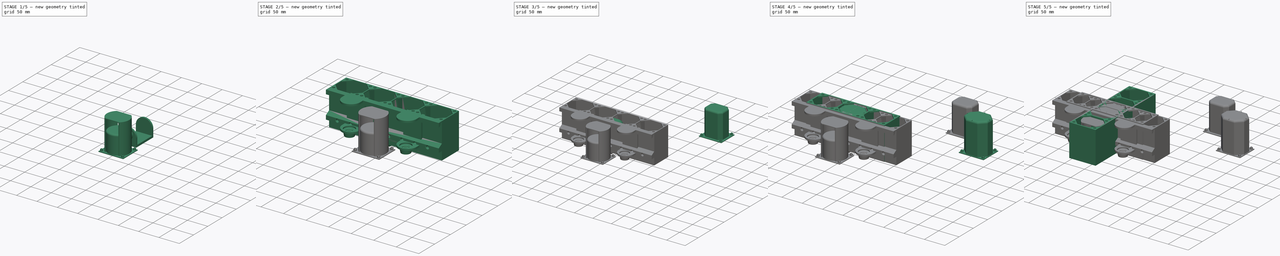
[diagram: build sequence overview — one tinted view per stage of 5, left to right]
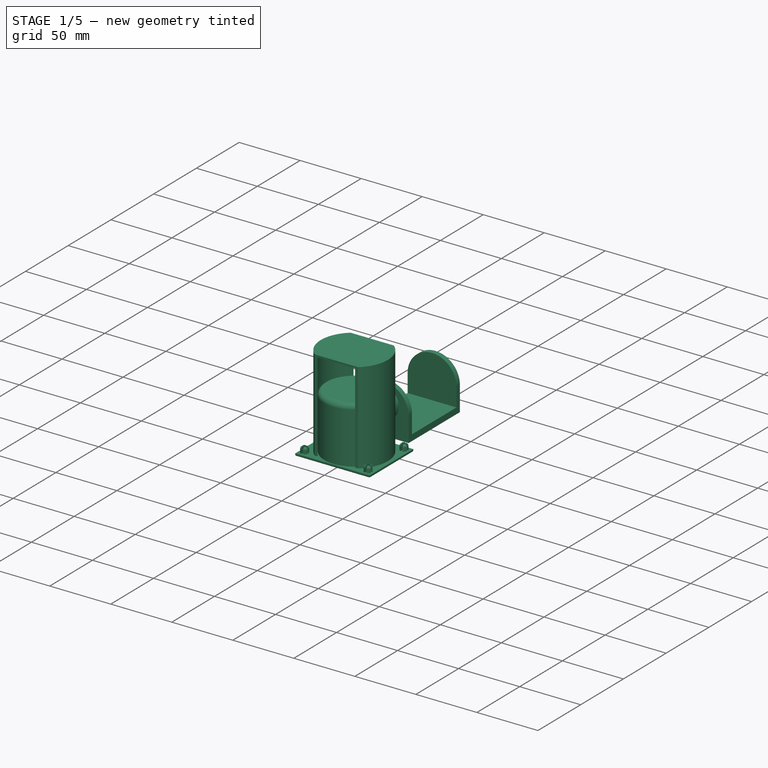
[diagram: stage 1 of 5 — iso view after this stage's code; geometry added in this stage tinted green]
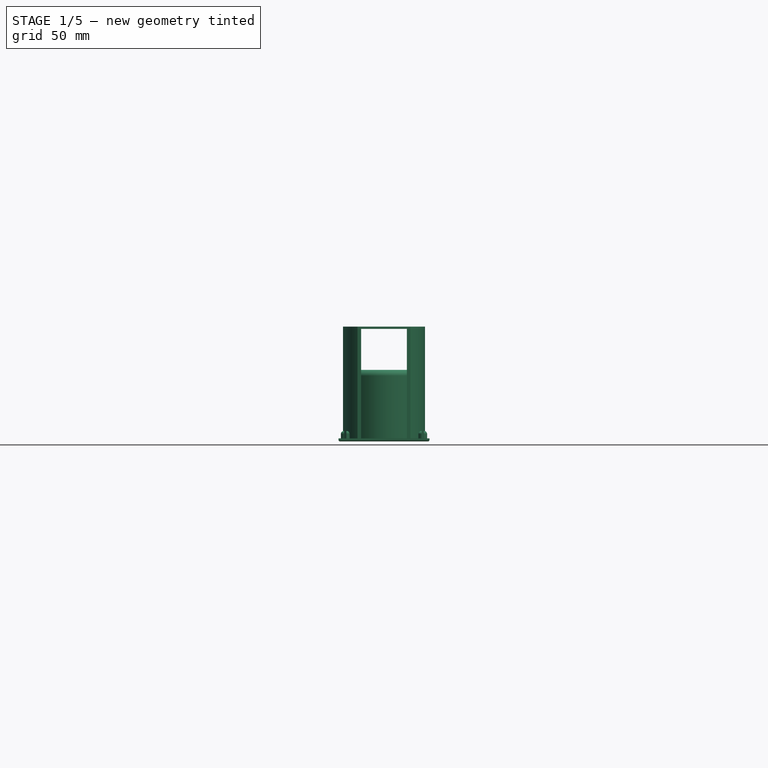
[diagram: stage 1 of 5 — front view after this stage's code; geometry added in this stage tinted green]
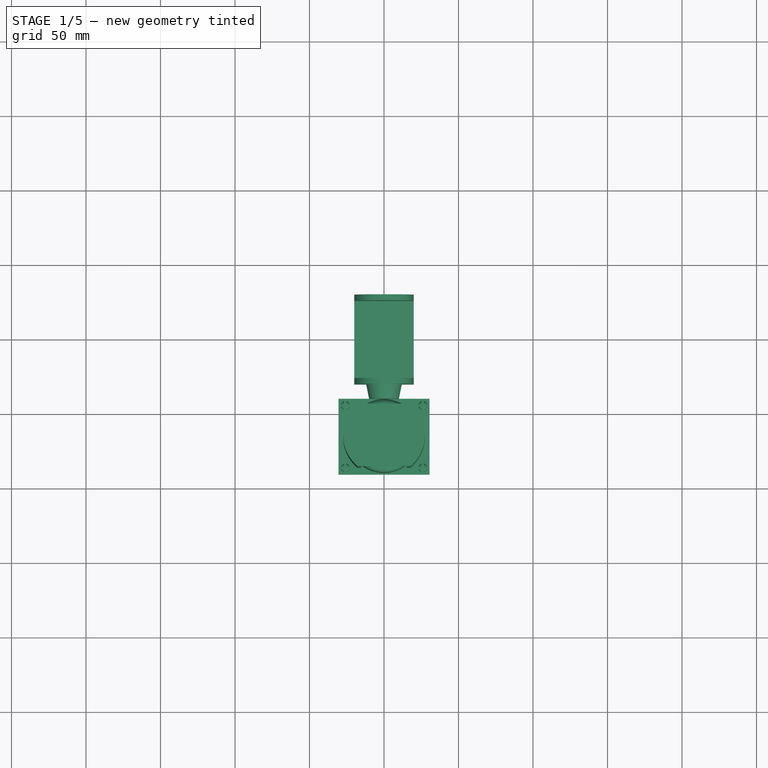
[diagram: stage 1 of 5 — top view after this stage's code; geometry added in this stage tinted green]
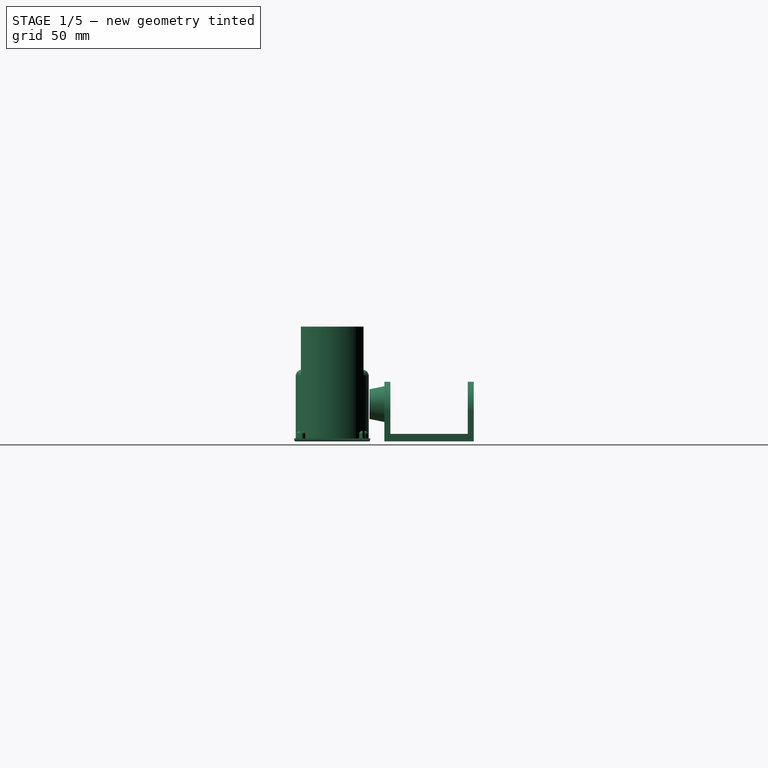
[diagram: stage 1 of 5 — right view after this stage's code; geometry added in this stage tinted green]
FCSTD DOCUMENT  (FreeCAD 0.20R29177 (Git))
Label: MedicineBoxGenerated
License: All rights reserved
LicenseURL: http://en.wikipedia.org/wiki/All_rights_reserved
objects: Sketcher::SketchObject×66, PartDesign::Plane×40, PartDesign::Pad×33, PartDesign::Body×33, PartDesign::Pocket×29, PartDesign::Fillet×26, PartDesign::FeatureBase×25, PartDesign::MultiTransform×13, PartDesign::LinearPattern×11, PartDesign::Mirrored×11, App::Part×4, PartDesign::Chamfer×2, Part::MultiFuse×2, Spreadsheet::Sheet×1, PartDesign::SubtractiveHelix×1, PartDesign::AdditiveHelix×1
note: 385 computed .brp shape members not serialized (recipe doc carries the construction recipe); baked Part::Feature solids carry a one-line shape summary decoded from their .brp

FEATURE [PartDesign::Plane] DatumPlane001
  Length = 82.7284
  MapMode = 5
  Placement = pos=(0,-54.5,0) rot=(1,0,0;1.5708rad)
  ResizeMode = 0
  Support = -> [CenterPocketTransform]
  Width = 122.728
FEATURE [Sketcher::SketchObject] Sketch
  FullyConstrained = true
  MapMode = 5
  Placement = pos=(0,-54.5,0) rot=(1,0,0;1.5708rad)
  Support = -> [DatumPlane001]
  sketch-geometry (4):
    g0: LineSegment StartX=-30 StartY=0 StartZ=0 EndX=-15 EndY=78 EndZ=0
    g1: LineSegment StartX=-15 StartY=78 StartZ=0 EndX=15 EndY=78 EndZ=0
    g2: LineSegment StartX=15 StartY=78 StartZ=0 EndX=30 EndY=0 EndZ=0
    g3: LineSegment StartX=30 StartY=0 StartZ=0 EndX=-30 EndY=0 EndZ=0
  constraints (10):
    c: PointOnObject(g0,g-1)
    c: Coincident(g0,g1)
    c: Coincident(g1,g2)
    c: Coincident(g2,g3)
    c: Coincident(g3,g0)
    c: DistanceX(g1,g1) = 30
    c: Symmetric(g1,g0,g-2)
    c: Symmetric(g0,g2,g-2)
    c: DistanceX(g3,g3) = 60
    c: DistanceY(g0,g0) = 78
FEATURE [PartDesign::Body] Scaffolding_2x3  label="Scaffolding_1x4"
  Group = -> [StructureSketch,MainStructure,DatumPlane,ZoneSketch,CenterPocket,CenterPocketTransformY,ZoneFillSketch,CenterFillPocket,CenterFillTransformY,DatumPlane001,Sketch,CenterFillTransform,CenterPocketTransform]
  Origin = -> Origin001
  Tip = -> CenterFillPocket
FEATURE [Sketcher::SketchObject] Sketch001
  FullyConstrained = true
  MapMode = 5
  Support = -> [XY_Plane003]
  sketch-geometry (4):
    g0: LineSegment StartX=-30.5 StartY=25.5 StartZ=0 EndX=30.5 EndY=25.5 EndZ=0
    g1: LineSegment StartX=30.5 StartY=25.5 StartZ=0 EndX=30.5 EndY=-25.5 EndZ=0
    g2: LineSegment StartX=30.5 StartY=-25.5 StartZ=0 EndX=-30.5 EndY=-25.5 EndZ=0
    g3: LineSegment StartX=-30.5 StartY=-25.5 StartZ=0 EndX=-30.5 EndY=25.5 EndZ=0
  constraints (10):
    c: Coincident(g0,g1)
    c: Coincident(g1,g2)
    c: Coincident(g2,g3)
    c: Coincident(g3,g0)
    c: Horizontal(g2)
    c: Vertical(g1)
    c: DistanceY(g3,g3) = 51
    c: DistanceX(g0,g0) = 61
    c: Symmetric(g0,g0,g-2)
    c: Symmetric(g0,g2,g-1)
FEATURE [PartDesign::Pad] Pad
  Direction = (0,0,1)
  Length = 2
  Length2 = 10
  Profile = -> Sketch001
  ReferenceAxis = -> Sketch001 [N_Axis]
  Type = 0
FEATURE [PartDesign::Plane] DatumPlane002
  Length = 60
  MapMode = 5
  Placement = pos=(0,0,2) rot=(0,0,1;0rad)
  ResizeMode = 0
  Support = -> [Pad]
  Width = 60
FEATURE [Sketcher::SketchObject] Sketch002
  FullyConstrained = true
  MapMode = 5
  Placement = pos=(0,0,2) rot=(0,0,1;0rad)
  Support = -> [DatumPlane002]
  sketch-geometry (1):
    g0: Circle CenterX=-26 CenterY=21 CenterZ=0 NormalX=0 NormalY=0 NormalZ=1 AngleXU=0 Radius=3
  constraints (3):
    c: DistanceX(g0,g-1) = 26
    c: DistanceY(g-1,g0) = 21
    c: Radius(g0) = 3
FEATURE [PartDesign::Pad] Pad001
  BaseFeature = -> Pad
  Direction = (0,0,1)
  Length = 5
  Length2 = 10
  Profile = -> Sketch002
  ReferenceAxis = -> Sketch002 [N_Axis]
  Type = 0
FEATURE [PartDesign::Mirrored] Mirrored
  MirrorPlane = -> Sketch002 [V_Axis]
FEATURE [PartDesign::Mirrored] Mirrored001
  MirrorPlane = -> Sketch002 [H_Axis]
FEATURE [PartDesign::MultiTransform] MultiTransform
  BaseFeature = -> Pad001
  Originals = -> [Pad001]
  Transformations = -> [Mirrored,Mirrored001]
FEATURE [PartDesign::Fillet] Fillet
  Base = -> MultiTransform [Face14,Face12,Face11,Face13]
  BaseFeature = -> MultiTransform
  Radius = 2
  SupportTransform = false
  UseAllEdges = false
FEATURE [PartDesign::Fillet] Fillet001
  Base = -> Fillet [Face12]
  BaseFeature = -> Fillet
  Radius = 1
  SupportTransform = false
  UseAllEdges = false
FEATURE [PartDesign::Plane] DatumPlane003
  Length = 60
  MapMode = 5
  Placement = pos=(0,0,7) rot=(0,0,1;0rad)
  ResizeMode = 0
  Support = -> [Fillet001]
  Width = 60
FEATURE [Sketcher::SketchObject] Sketch003
  FullyConstrained = false
  MapMode = 5
  Placement = pos=(0,0,7) rot=(0,0,1;0rad)
  Support = -> [DatumPlane003]
  sketch-geometry (12):
    g0: LineSegment StartX=-29.2656 StartY=-20.2829 StartZ=0 EndX=-26.7656 EndY=-20.2829 EndZ=0
    g1: LineSegment StartX=-26.7656 StartY=-20.2829 StartZ=0 EndX=-26.7656 EndY=-17.7829 EndZ=0
    g2: LineSegment StartX=-26.7656 StartY=-17.7829 StartZ=0 EndX=-25.2656 EndY=-17.7829 EndZ=0
    g3: LineSegment StartX=-25.2656 StartY=-17.7829 StartZ=0 EndX=-25.2656 EndY=-20.2829 EndZ=0
    g4: LineSegment StartX=-25.2656 StartY=-20.2829 StartZ=0 EndX=-22.7656 EndY=-20.2829 EndZ=0
    g5: LineSegment StartX=-22.7656 StartY=-20.2829 StartZ=0 EndX=-22.7656 EndY=-21.7829 EndZ=0
    g6: LineSegment StartX=-22.7656 StartY=-21.7829 StartZ=0 EndX=-25.2656 EndY=-21.7829 EndZ=0
    g7: LineSegment StartX=-25.2656 StartY=-21.7829 StartZ=0 EndX=-25.2656 EndY=-24.2829 EndZ=0
    g8: LineSegment StartX=-25.2656 StartY=-24.2829 StartZ=0 EndX=-26.7656 EndY=-24.2829 EndZ=0
    g9: LineSegment StartX=-26.7656 StartY=-24.2829 StartZ=0 EndX=-26.7656 EndY=-21.7829 EndZ=0
    g10: LineSegment StartX=-26.7656 StartY=-21.7829 StartZ=0 EndX=-29.2656 EndY=-21.7829 EndZ=0
    g11: LineSegment StartX=-29.2656 StartY=-21.7829 StartZ=0 EndX=-29.2656 EndY=-20.2829 EndZ=0
  constraints (34):
    c: Horizontal(g0)
    c: Coincident(g0,g1)
    c: Vertical(g1)
    c: Coincident(g1,g2)
    c: Horizontal(g2)
    c: Coincident(g2,g3)
    c: Vertical(g3)
    c: Coincident(g3,g4)
    c: Coincident(g4,g5)
    c: Coincident(g5,g6)
    c: Coincident(g6,g7)
    c: Coincident(g7,g8)
    c: Coincident(g8,g9)
    c: Vertical(g9)
    c: Coincident(g9,g10)
    c: Horizontal(g10)
    c: Coincident(g10,g11)
    c: Coincident(g11,g0)
    c: DistanceX(g2,g2) = 1.5
    c: Equal(g2,g5)
    c: Equal(g5,g8)
    c: Equal(g8,g11)
    c: DistanceX(g0,g0) = 2.5
    c: Equal(g0,g1)
    c: Equal(g1,g3)
    c: Equal(g3,g4)
    c: Equal(g4,g6)
    c: Equal(g6,g7)
    c: Equal(g7,g9)
    c: Equal(g9,g10)
    c: Horizontal(g6)
    c: Vertical(g11)
    c: Vertical(g5)
    c: Vertical(g7)
FEATURE [PartDesign::Pocket] Pocket
  BaseFeature = -> Fillet001
  Direction = (0,0,-1)
  Length = 5
  Length2 = 5
  Profile = -> Sketch003
  ReferenceAxis = -> Sketch003 [N_Axis]
  Type = 0
FEATURE [PartDesign::Mirrored] Mirrored002
  MirrorPlane = -> Sketch003 [V_Axis]
FEATURE [PartDesign::Mirrored] Mirrored003
  MirrorPlane = -> Sketch003 [H_Axis]
FEATURE [PartDesign::MultiTransform] MultiTransform001
  BaseFeature = -> Pocket
  Originals = -> [Pocket]
  Transformations = -> [Mirrored002,Mirrored003]
FEATURE [PartDesign::Body] Body012  label="Round-34x64"
  BaseFeature = -> Body
  Group = -> [Clone005,DatumPlane007,Sketch045,Pad014,Sketch046,Pocket012,Fillet033,Fillet034]
  Origin = -> Origin016
  Placement = pos=(74,-66,0) rot=(0,0,1;0rad)
  Tip = -> Fillet034
FEATURE [Sketcher::SketchObject] Sketch070
  FullyConstrained = true
  MapMode = 5
  Support = -> [XY_Plane035]
  sketch-geometry (4):
    g0: LineSegment StartX=-20 StartY=30 StartZ=0 EndX=20 EndY=30 EndZ=0
    g1: LineSegment StartX=20 StartY=30 StartZ=0 EndX=20 EndY=-30 EndZ=0
    g2: LineSegment StartX=20 StartY=-30 StartZ=0 EndX=-20 EndY=-30 EndZ=0
    g3: LineSegment StartX=-20 StartY=-30 StartZ=0 EndX=-20 EndY=30 EndZ=0
  constraints (10):
    c: Coincident(g0,g1)
    c: Coincident(g1,g2)
    c: Coincident(g2,g3)
    c: Coincident(g3,g0)
    c: Horizontal(g2)
    c: Vertical(g1)
    c: Symmetric(g0,g0,g-2)
    c: Symmetric(g0,g2,g-1)
    c: DistanceY(g2,g0) = 60
    c: DistanceX(g0,g0) = 40
FEATURE [PartDesign::Pad] Pad030
  Direction = (0,0,1)
  Length = 40
  Length2 = 10
  Profile = -> Sketch070
  ReferenceAxis = -> Sketch070 [N_Axis]
  Type = 0
FEATURE [PartDesign::Plane] DatumPlane029
  Length = 61.8322
  MapMode = 5
  Placement = pos=(0,0,40) rot=(0,0,1;0rad)
  ResizeMode = 0
  Support = -> [Pad030]
  Width = 81.8322
FEATURE [Sketcher::SketchObject] Sketch071
  FullyConstrained = true
  MapMode = 5
  Placement = pos=(0,0,40) rot=(0,0,1;0rad)
  Support = -> [DatumPlane029]
  sketch-geometry (4):
    g0: LineSegment StartX=-20 StartY=26 StartZ=0 EndX=20 EndY=26 EndZ=0
    g1: LineSegment StartX=20 StartY=26 StartZ=0 EndX=20 EndY=-26 EndZ=0
    g2: LineSegment StartX=20 StartY=-26 StartZ=0 EndX=-20 EndY=-26 EndZ=0
    g3: LineSegment StartX=-20 StartY=-26 StartZ=0 EndX=-20 EndY=26 EndZ=0
  constraints (10):
    c: Coincident(g0,g1)
    c: Coincident(g1,g2)
    c: Coincident(g2,g3)
    c: Coincident(g3,g0)
    c: Horizontal(g2)
    c: Vertical(g1)
    c: Symmetric(g0,g2,g-1)
    c: Symmetric(g0,g0,g-2)
    c: DistanceX(g0,g0) = 40
    c: DistanceY(g3,g3) = 52
FEATURE [PartDesign::Pocket] Pocket021
  BaseFeature = -> Pad030
  Direction = (0,0,-1)
  Length = 35
  Length2 = 5
  Profile = -> Sketch071
  ReferenceAxis = -> Sketch071 [N_Axis]
  Type = 0
FEATURE [PartDesign::Plane] DatumPlane030
  Length = 61.4018
  MapMode = 5
  Placement = pos=(0,-30,0) rot=(1,0,0;1.5708rad)
  ResizeMode = 0
  Support = -> [Pocket021]
  Width = 76.4018
FEATURE [Sketcher::SketchObject] Sketch072
  FullyConstrained = true
  MapMode = 5
  Placement = pos=(0,-30,0) rot=(1,0,0;1.5708rad)
  Support = -> [DatumPlane030]
  sketch-geometry (1):
    g0: Circle CenterX=0 CenterY=25 CenterZ=0 NormalX=0 NormalY=0 NormalZ=1 AngleXU=0 Radius=10
  constraints (3):
    c: PointOnObject(g0,g-2)
    c: Radius(g0) = 10
    c: DistanceY(g-1,g0) = 25
FEATURE [PartDesign::Pad] Pad031
  BaseFeature = -> Pocket021
  Direction = (0,-1,2e-16)
  Length = 10
  Length2 = 10
  Profile = -> Sketch072
  ReferenceAxis = -> Sketch072 [N_Axis]
  Type = 0
FEATURE [PartDesign::Plane] DatumPlane031
  Length = 61.4018
  MapMode = 5
  Placement = pos=(4.7e-15,-40,8.2e-15) rot=(1,0,0;1.5708rad)
  ResizeMode = 0
  Support = -> [Pad031]
  Width = 76.4018
FEATURE [Sketcher::SketchObject] Sketch074
  AttachmentOffset = pos=(0,25,-15) rot=(1,0,0;1.5708rad)
  FullyConstrained = true
  MapMode = 5
  Placement = pos=(3e-15,-25,25) rot=(1,0,0;3.14159rad)
  Support = -> [DatumPlane031]
  sketch-geometry (5):
    g0: LineSegment StartX=0 StartY=1.5 StartZ=0 EndX=6 EndY=1.5 EndZ=0
    g1: LineSegment StartX=6 StartY=1.5 StartZ=0 EndX=9 EndY=0 EndZ=0
    g2: LineSegment StartX=9 StartY=0 StartZ=0 EndX=6 EndY=-1.5 EndZ=0
    g3: LineSegment StartX=6 StartY=-1.5 StartZ=0 EndX=0 EndY=-1.5 EndZ=0
    g4: LineSegment StartX=0 StartY=-1.5 StartZ=0 EndX=0 EndY=1.5 EndZ=0
  constraints (14):
    c: PointOnObject(g0,g-2)
    c: Horizontal(g0)
    c: Coincident(g0,g1)
    c: PointOnObject(g1,g-1)
    c: Coincident(g1,g2)
    c: Coincident(g2,g3)
    c: Horizontal(g3)
    c: Coincident(g3,g4)
    c: Coincident(g4,g0)
    c: Equal(g0,g3)
    c: Symmetric(g0,g3,g-1)
    c: DistanceX(g0,g1) = 3
    c: DistanceX(g0,g0) = 6
    c: DistanceY(g4,g4) = 3
FEATURE [Sketcher::SketchObject] Sketch075
  FullyConstrained = true
  MapMode = 5
  Placement = pos=(4.7e-15,-40,8.2e-15) rot=(1,0,0;1.5708rad)
  Support = -> [DatumPlane031]
  sketch-geometry (1):
    g0: Circle CenterX=0 CenterY=25 CenterZ=0 NormalX=0 NormalY=0 NormalZ=1 AngleXU=0 Radius=7
  constraints (3):
    c: PointOnObject(g0,g-2)
    c: DistanceY(g-1,g0) = 25
    c: Radius(g0) = 7
FEATURE [PartDesign::Pocket] Pocket022
  BaseFeature = -> Pad031
  Direction = (-1e-16,1,-2e-16)
  Length = 5
  Length2 = 5
  Profile = -> Sketch075
  ReferenceAxis = -> Sketch075 [N_Axis]
  Type = 2
FEATURE [PartDesign::SubtractiveHelix] SubtractiveHelix
  Angle = 0
  Axis = (1e-16,-1,4e-16)
  Base = (3e-15,-25,25)
  BaseFeature = -> Pocket022
  Growth = 0
  HasBeenEdited = true
  Height = 20
  LeftHanded = false
  Mode = 0
  Outside = false
  Pitch = 3
  Profile = -> Sketch074
  ReferenceAxis = -> Sketch074 [V_Axis]
  Turns = 6.66667
FEATURE [PartDesign::Chamfer] Chamfer
  Angle = 45
  Base = -> SubtractiveHelix [Edge28]
  BaseFeature = -> SubtractiveHelix
  ChamferType = 1
  FlipDirection = false
  Size = 2
  Size2 = 9.9
  SupportTransform = false
  UseAllEdges = false
FEATURE [PartDesign::Plane] DatumPlane032
  Length = 61.4018
  MapMode = 5
  Placement = pos=(0,-26,0) rot=(0,0.707107,0.707107;3.14159rad)
  ResizeMode = 0
  Support = -> [Chamfer]
  Width = 76.4018
FEATURE [Sketcher::SketchObject] Sketch076
  FullyConstrained = true
  MapMode = 5
  Placement = pos=(0,-26,0) rot=(0,0.707107,0.707107;3.14159rad)
  Support = -> [DatumPlane032]
  sketch-geometry (1):
    g0: Circle CenterX=0 CenterY=25 CenterZ=0 NormalX=0 NormalY=0 NormalZ=1 AngleXU=0 Radius=12
  constraints (3):
    c: PointOnObject(g0,g-2)
    c: DistanceY(g-1,g0) = 25
    c: Radius(g0) = 12
FEATURE [PartDesign::Pocket] Pocket023
  BaseFeature = -> Chamfer
  Direction = (0,-1,2e-16)
  Length = 3
  Length2 = 5
  Profile = -> Sketch076
  ReferenceAxis = -> Sketch076 [N_Axis]
  Type = 0
FEATURE [PartDesign::Fillet] Fillet035
  Base = -> Pocket023 [Edge18,Edge9,Edge20,Edge13]
  BaseFeature = -> Pocket023
  Radius = 19.9
  SupportTransform = false
  UseAllEdges = false
FEATURE [App::Part] Part003  label="Composite Scaffolding"
  Group = -> [Body032,Body033,Body034,Fusion,Fusion001]
  Origin = -> Origin039
FEATURE [PartDesign::FeatureBase] Clone024
  BaseFeature = -> Body
  Placement = pos=(0,-65,0) rot=(0,0,1;0rad)
FEATURE [PartDesign::Plane] DatumPlane040
  Length = 63.4164
  MapMode = 5
  Placement = pos=(0,-65,0) rot=(1,0,0;3.14159rad)
  ResizeMode = 0
  Support = -> [Clone024]
  Width = 103.416
FEATURE [Sketcher::SketchObject] Sketch088
  FullyConstrained = true
  MapMode = 5
  Placement = pos=(0,-65,0) rot=(1,0,0;3.14159rad)
  Support = -> [DatumPlane040]
  sketch-geometry (1):
    g0: Circle CenterX=0 CenterY=0 CenterZ=0 NormalX=0 NormalY=0 NormalZ=1 AngleXU=0 Radius=26
  constraints (2):
    c: Coincident(g0,g-1)
    c: Radius(g0) = 26
FEATURE [Sketcher::SketchObject] Sketch089
  FullyConstrained = true
  MapMode = 5
  Placement = pos=(0,-65,0) rot=(1,0,0;3.14159rad)
  Support = -> [DatumPlane040]
  sketch-geometry (4):
    g0: ArcOfCircle CenterX=0 CenterY=0 CenterZ=0 NormalX=0 NormalY=0 NormalZ=1 AngleXU=0 Radius=27.5 StartAngle=2.27267 EndAngle=4.01052
    g1: ArcOfCircle CenterX=0 CenterY=0 CenterZ=0 NormalX=0 NormalY=0 NormalZ=1 AngleXU=0 Radius=27.5 StartAngle=5.41426 EndAngle=7.15211
    g2: LineSegment StartX=-17.7553 StartY=21 StartZ=0 EndX=17.7553 EndY=21 EndZ=0
    g3: LineSegment StartX=17.7553 StartY=-21 StartZ=0 EndX=-17.7553 EndY=-21 EndZ=0
  constraints (12):
    c: Coincident(g0,g-1)
    c: Coincident(g1,g0)
    c: Radius(g1) = 27.5
    c: Equal(g0,g1)
    c: DistanceY(g-1,g0) = 21
    c: DistanceY(g0,g-1) = 21
    c: DistanceY(g-1,g1) = 21
    c: DistanceY(g1,g-1) = 21
    c: Coincident(g2,g0)
    c: Coincident(g2,g1)
    c: Coincident(g3,g1)
    c: Coincident(g3,g0)
FEATURE [PartDesign::Pad] Pad039
  BaseFeature = -> Clone024
  Direction = (0,0,-1)
  Length = 77
  Length2 = 10
  Placement = pos=(0,-65,0) rot=(0,0,1;0rad)
  Profile = -> Sketch089
  ReferenceAxis = -> Sketch089 [N_Axis]
  Reversed = true
  Type = 0
FEATURE [PartDesign::Pocket] Pocket026
  BaseFeature = -> Pad039
  Direction = (0,0,1)
  Length = 75.5
  Length2 = 5
  Placement = pos=(0,-65,0) rot=(0,0,1;0rad)
  Profile = -> Sketch088
  ReferenceAxis = -> Sketch088 [N_Axis]
  Type = 0
FEATURE [PartDesign::Body] Body037  label="Round-52x75"
  Group = -> [Clone024,DatumPlane040,Sketch088,Sketch089,Pad039,Pocket026]
  Origin = -> Origin045
  Placement = pos=(295,0,0) rot=(0,0,1;0rad)
  Tip = -> Pocket026
FEATURE [PartDesign::FeatureBase] Clone025
  BaseFeature = -> Body
  Placement = pos=(0,-65,0) rot=(0,0,1;0rad)
FEATURE [PartDesign::Plane] DatumPlane041
  Length = 77.7875
  MapMode = 5
  Placement = pos=(0,-65,0) rot=(1,0,0;3.14159rad)
  ResizeMode = 0
  Support = -> [Clone025]
  Width = 132.287
FEATURE [Sketcher::SketchObject] Sketch090
  FullyConstrained = true
  MapMode = 5
  Placement = pos=(0,-65,0) rot=(1,0,0;3.14159rad)
  Support = -> [DatumPlane041]
  sketch-geometry (1):
    g0: Circle CenterX=0 CenterY=0 CenterZ=0 NormalX=0 NormalY=0 NormalZ=1 AngleXU=0 Radius=21.5
  constraints (2):
    c: Coincident(g0,g-1)
    c: Radius(g0) = 21.5
FEATURE [PartDesign::Pad] Pad040
  BaseFeature = -> Clone025
  Direction = (0,0,-1)
  Length = 41.5
  Length2 = 10
  Placement = pos=(0,-65,0) rot=(0,0,1;0rad)
  Profile = -> Sketch090
  ReferenceAxis = -> Sketch090 [N_Axis]
  Reversed = true
  Type = 0
FEATURE [Sketcher::SketchObject] Sketch091
  FullyConstrained = true
  MapMode = 5
  Placement = pos=(0,-65,0) rot=(1,0,0;3.14159rad)
  Support = -> [DatumPlane041]
  sketch-geometry (1):
    g0: Circle CenterX=0 CenterY=0 CenterZ=0 NormalX=0 NormalY=0 NormalZ=1 AngleXU=0 Radius=20
  constraints (2):
    c: Coincident(g0,g-1)
    c: Radius(g0) = 20
FEATURE [PartDesign::Pocket] Pocket027
  BaseFeature = -> Pad040
  Direction = (0,0,1)
  Length = 40
  Length2 = 5
  Placement = pos=(0,-65,0) rot=(0,0,1;0rad)
  Profile = -> Sketch091
  ReferenceAxis = -> Sketch091 [N_Axis]
  Type = 0
FEATURE [PartDesign::Fillet] Fillet039
  Base = -> Pocket027 [Face99,Face84]
  BaseFeature = -> Pocket027
  Placement = pos=(0,-65,0) rot=(0,0,1;0rad)
  Radius = 4
  SupportTransform = false
  UseAllEdges = false
FEATURE [PartDesign::Fillet] Fillet040
  Base = -> Fillet039 [Edge239]
  BaseFeature = -> Fillet039
  Placement = pos=(0,-65,0) rot=(0,0,1;0rad)
  Radius = 2
  SupportTransform = false
  UseAllEdges = false
FEATURE [PartDesign::Body] Body038  label="Round-40x40"
  Group = -> [Clone025,DatumPlane041,Sketch090,Pad040,Sketch091,Pocket027,Fillet039,Fillet040]
  Origin = -> Origin046
  Placement = pos=(150,-61,0) rot=(0,0,1;0rad)
  Tip = -> Fillet040
FEATURE [PartDesign::FeatureBase] Clone026
  BaseFeature = -> Body
  Placement = pos=(0,-65,0) rot=(0,0,1;0rad)
FEATURE [PartDesign::Plane] DatumPlane042
  Length = 77.7875
  MapMode = 5
  Placement = pos=(0,-65,0) rot=(1,0,0;3.14159rad)
  ResizeMode = 0
  Support = -> [Clone026]
  Width = 132.287
FEATURE [Sketcher::SketchObject] Sketch092
  FullyConstrained = true
  MapMode = 5
  Placement = pos=(0,-65,0) rot=(1,0,0;3.14159rad)
  Support = -> [DatumPlane042]
  sketch-geometry (1):
    g0: Circle CenterX=0 CenterY=0 CenterZ=0 NormalX=0 NormalY=0 NormalZ=1 AngleXU=0 Radius=24.5
  constraints (2):
    c: Coincident(g0,g-1)
    c: Radius(g0) = 24.5
FEATURE [PartDesign::Pad] Pad041
  BaseFeature = -> Clone026
  Direction = (0,0,-1)
  Length = 48
  Length2 = 10
  Placement = pos=(0,-65,0) rot=(0,0,1;0rad)
  Profile = -> Sketch092
  ReferenceAxis = -> Sketch092 [N_Axis]
  Reversed = true
  Type = 0
FEATURE [Sketcher::SketchObject] Sketch093
  FullyConstrained = true
  MapMode = 5
  Placement = pos=(0,-65,0) rot=(1,0,0;3.14159rad)
  Support = -> [DatumPlane042]
  sketch-geometry (1):
    g0: Circle CenterX=0 CenterY=0 CenterZ=0 NormalX=0 NormalY=0 NormalZ=1 AngleXU=0 Radius=23
  constraints (2):
    c: Coincident(g0,g-1)
    c: Radius(g0) = 23
FEATURE [PartDesign::Pocket] Pocket028
  BaseFeature = -> Pad041
  Direction = (0,0,1)
  Length = 46
  Length2 = 5
  Placement = pos=(0,-65,0) rot=(0,0,1;0rad)
  Profile = -> Sketch093
  ReferenceAxis = -> Sketch093 [N_Axis]
  Type = 0
FEATURE [PartDesign::Fillet] Fillet041
  Base = -> Pocket028 [Face100,Face72]
  BaseFeature = -> Pocket028
  Placement = pos=(0,-65,0) rot=(0,0,1;0rad)
  Radius = 4
  SupportTransform = false
  UseAllEdges = false
FEATURE [PartDesign::Body] Body039  label="Round-46x46"
  Group = -> [Clone026,DatumPlane042,Sketch092,Pad041,Sketch093,Pocket028,Fillet041]
  Origin = -> Origin047
  Placement = pos=(223,-58,0) rot=(0,0,1;0rad)
  Tip = -> Fillet041
FEATURE [App::Part] Part001  label="Covers"
  Group = -> [Body,Body007,Body008,Body009,Body010,Body011,Body027,Body013,Body016,Body015,Body014,Body017,Body018,Body020,Body023,Body024,Body022,Body025,Body012,Body039,Body037]
  Origin = -> Origin002
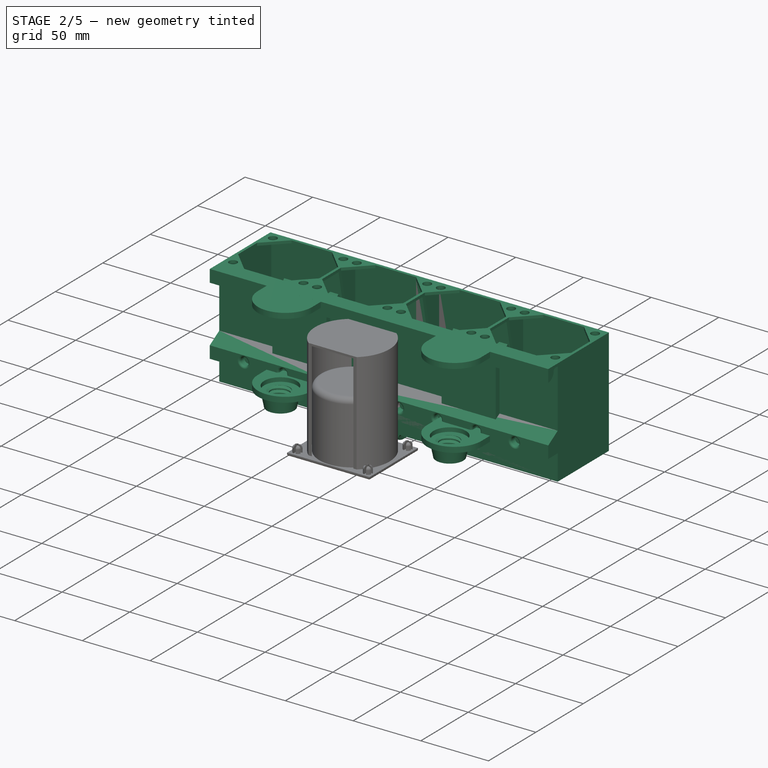
[diagram: stage 2 of 5 — iso view after this stage's code; geometry added in this stage tinted green]
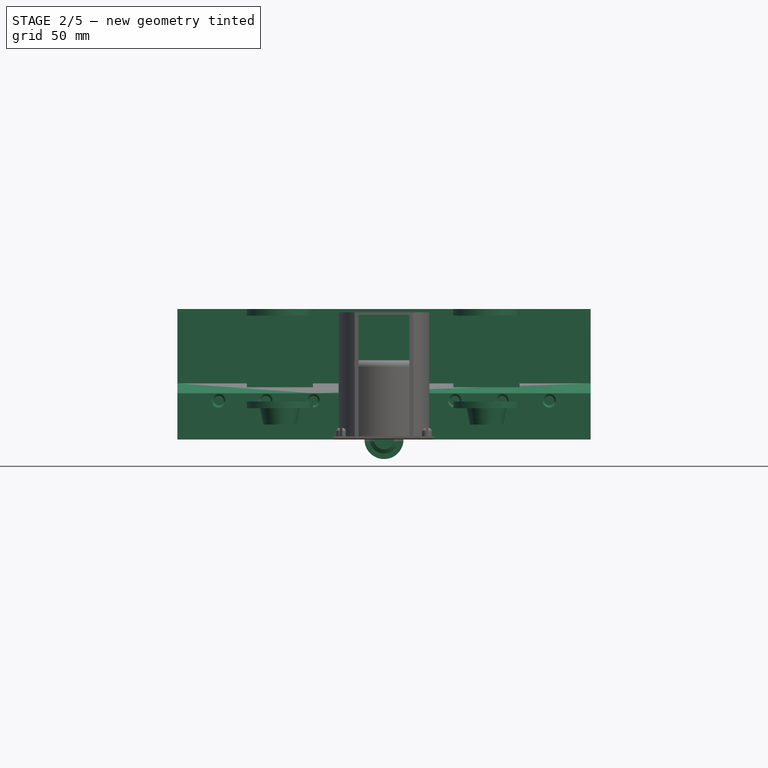
[diagram: stage 2 of 5 — front view after this stage's code; geometry added in this stage tinted green]
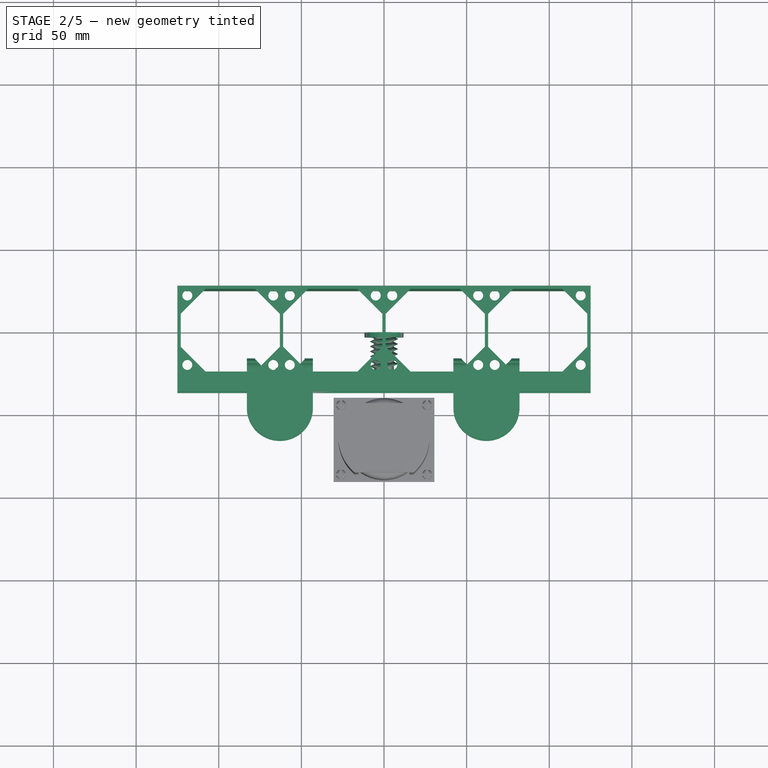
[diagram: stage 2 of 5 — top view after this stage's code; geometry added in this stage tinted green]
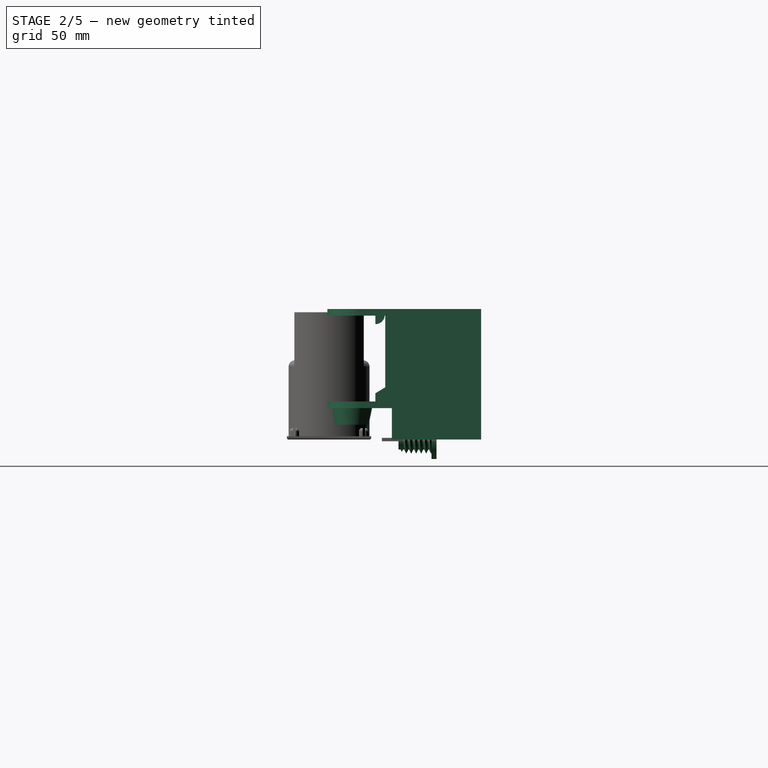
[diagram: stage 2 of 5 — right view after this stage's code; geometry added in this stage tinted green]
FEATURE [PartDesign::Body] Body015  label="LargeSyringes"
  BaseFeature = -> Body
  Group = -> [Clone008,DatumPlane014,Sketch053,Pocket016,MultiTransform004,Mirrored004,Mirrored005]
  Origin = -> Origin020
  Placement = pos=(74,61,0) rot=(0,0,1;0rad)
  Tip = -> MultiTransform004
FEATURE [Sketcher::SketchObject] StructureSketch002
  FullyConstrained = true
  MapMode = 5
  Support = -> [XY_Plane024]
  sketch-geometry (4):
    g0: LineSegment StartX=-125 StartY=-27 StartZ=0 EndX=125 EndY=-27 EndZ=0
    g1: LineSegment StartX=125 StartY=-27 StartZ=0 EndX=125 EndY=27 EndZ=0
    g2: LineSegment StartX=125 StartY=27 StartZ=0 EndX=-125 EndY=27 EndZ=0
    g3: LineSegment StartX=-125 StartY=27 StartZ=0 EndX=-125 EndY=-27 EndZ=0
  constraints (10):
    c: Coincident(g0,g1)
    c: Coincident(g1,g2)
    c: Coincident(g2,g3)
    c: Coincident(g3,g0)
    c: Horizontal(g2)
    c: Vertical(g3)
    c: DistanceX(g0,g0) = 250
    c: DistanceY(g1,g1) = 54
    c: Symmetric(g0,g0,g-2)
    c: Symmetric(g1,g1,g-1)
FEATURE [PartDesign::Pad] MainStructure002
  Direction = (0,0,1)
  Length = 79
  Length2 = 10
  Profile = -> StructureSketch002
  ReferenceAxis = -> StructureSketch002 [N_Axis]
  Type = 0
FEATURE [PartDesign::Plane] DatumPlane015
  Length = 60
  MapMode = 2
  ResizeMode = 0
  Support = -> [MainStructure002]
  Width = 60
FEATURE [Sketcher::SketchObject] ZoneFillSketch002
  AttachmentOffset = pos=(93,0,0) rot=(0,0,1;0rad)
  FullyConstrained = true
  MapMode = 5
  Placement = pos=(93,0,0) rot=(0,0,1;0rad)
  Support = -> [DatumPlane015]
  sketch-geometry (4):
    g0: LineSegment StartX=-30 StartY=25 StartZ=0 EndX=30 EndY=25 EndZ=0
    g1: LineSegment StartX=30 StartY=25 StartZ=0 EndX=30 EndY=-25 EndZ=0
    g2: LineSegment StartX=30 StartY=-25 StartZ=0 EndX=-30 EndY=-25 EndZ=0
    g3: LineSegment StartX=-30 StartY=-25 StartZ=0 EndX=-30 EndY=25 EndZ=0
  constraints (10):
    c: Coincident(g0,g1)
    c: Coincident(g1,g2)
    c: Coincident(g2,g3)
    c: Coincident(g3,g0)
    c: DistanceX(g0,g0) = 60
    c: DistanceY(g1,g1) = 50
    c: Symmetric(g0,g0,g-2)
    c: Symmetric(g1,g1,g-1)
    c: Equal(g0,g2)
    c: Equal(g1,g3)
FEATURE [PartDesign::LinearPattern] CenterFillTransformX001
  Direction = -> ZoneFillSketch002 [H_Axis]
  Length = 186
  Occurrences = 4
  Reversed = true
FEATURE [Sketcher::SketchObject] ZoneSketch002
  AttachmentOffset = pos=(93,0,0) rot=(0,0,1;0rad)
  FullyConstrained = false
  MapMode = 5
  Placement = pos=(93,0,0) rot=(0,0,1;0rad)
  Support = -> [DatumPlane015]
  sketch-geometry (12):
    g0: LineSegment StartX=-15 StartY=25 StartZ=0 EndX=15 EndY=25 EndZ=0
    g1: LineSegment StartX=15 StartY=25 StartZ=0 EndX=30 EndY=10 EndZ=0
    g2: LineSegment StartX=30 StartY=10 StartZ=0 EndX=30 EndY=-10 EndZ=0
    g3: LineSegment StartX=30 StartY=-10 StartZ=0 EndX=15 EndY=-25 EndZ=0
    g4: LineSegment StartX=15 StartY=-25 StartZ=0 EndX=-15 EndY=-25 EndZ=0
    g5: LineSegment StartX=-15 StartY=-25 StartZ=0 EndX=-30 EndY=-10 EndZ=0
    g6: LineSegment StartX=-30 StartY=-10 StartZ=0 EndX=-30 EndY=10 EndZ=0
    g7: LineSegment StartX=-30 StartY=10 StartZ=0 EndX=-15 EndY=25 EndZ=0
    g8: Circle CenterX=-26 CenterY=21 CenterZ=0 NormalX=0 NormalY=0 NormalZ=1 AngleXU=0 Radius=3
    g9: Circle CenterX=26 CenterY=21 CenterZ=0 NormalX=0 NormalY=0 NormalZ=1 AngleXU=0 Radius=3
    g10: Circle CenterX=26 CenterY=-21 CenterZ=0 NormalX=0 NormalY=0 NormalZ=1 AngleXU=0 Radius=3
    g11: Circle CenterX=-26 CenterY=-21 CenterZ=0 NormalX=0 NormalY=0 NormalZ=1 AngleXU=0 Radius=3
  constraints (24):
    c: Coincident(g0,g1)
    c: Coincident(g1,g2)
    c: Coincident(g2,g3)
    c: Coincident(g3,g4)
    c: Coincident(g4,g5)
    c: Coincident(g5,g6)
    c: Coincident(g6,g7)
    c: Coincident(g7,g0)
    c: Horizontal(g4)
    c: Vertical(g6)
    c: DistanceX(g0,g0) = 30
    c: DistanceY(g2,g2) = 20
    c: DistanceX(g6,g2) = 60
    c: DistanceY(g4,g0) = 50
    c: Symmetric(g0,g0,g-2)
    c: Symmetric(g2,g2,g-1)
    c: Symmetric(g0,g4,g-1)
    c: Symmetric(g2,g6,g-2)
    c: Equal(g0,g4)
    c: Equal(g2,g6)
    c: Radius(g8) = 3
    c: Radius(g9) = 3
    c: Radius(g10) = 3
    c: Radius(g11) = 3
FEATURE [PartDesign::Pocket] CenterPocket002
  BaseFeature = -> MainStructure002
  Direction = (0,0,-1)
  Length = 79
  Length2 = 5
  Profile = -> ZoneSketch002
  ReferenceAxis = -> ZoneSketch002 [N_Axis]
  Reversed = true
  Type = 0
FEATURE [PartDesign::Pocket] CenterFillPocket002
  BaseFeature = -> CenterPocket002
  Direction = (0,0,-1)
  Length = 77
  Length2 = 5
  Profile = -> ZoneFillSketch002
  ReferenceAxis = -> ZoneFillSketch002 [N_Axis]
  Reversed = true
  Type = 0
FEATURE [PartDesign::MultiTransform] CenterFillTransform002
  BaseFeature = -> CenterFillPocket002
  Originals = -> [CenterFillPocket002]
  Transformations = -> [CenterFillTransformX001]
FEATURE [PartDesign::LinearPattern] CenterPocketTransformX001
  Direction = -> ZoneSketch002 [H_Axis]
  Length = 186
  Occurrences = 4
  Reversed = true
FEATURE [PartDesign::MultiTransform] CenterPocketTransform002
  BaseFeature = -> CenterFillTransform002
  Originals = -> [CenterPocket002]
  Transformations = -> [CenterPocketTransformX001]
FEATURE [PartDesign::Plane] DatumPlane016
  Length = 60
  MapMode = 5
  Placement = pos=(-63,0,0) rot=(0.57735,-0.57735,-0.57735;2.0944rad)
  ResizeMode = 0
  Support = -> [CenterPocketTransform002]
  Width = 60
FEATURE [Sketcher::SketchObject] Sketch054
  FullyConstrained = true
  MapMode = 5
  Placement = pos=(-63,0,0) rot=(0.57735,-0.57735,-0.57735;2.0944rad)
  Support = -> [DatumPlane016]
  sketch-geometry (4):
    g0: LineSegment StartX=-25 StartY=0 StartZ=0 EndX=-10 EndY=77 EndZ=0
    g1: LineSegment StartX=-10 StartY=77 StartZ=0 EndX=10 EndY=77 EndZ=0
    g2: LineSegment StartX=10 StartY=77 StartZ=0 EndX=25 EndY=0 EndZ=0
    g3: LineSegment StartX=25 StartY=0 StartZ=0 EndX=-25 EndY=0 EndZ=0
  constraints (10):
    c: PointOnObject(g0,g-1)
    c: Coincident(g0,g1)
    c: Coincident(g1,g2)
    c: Coincident(g2,g3)
    c: Coincident(g3,g0)
    c: DistanceX(g1,g1) = 20
    c: DistanceX(g3,g3) = 50
    c: Symmetric(g0,g2,g-2)
    c: Symmetric(g0,g1,g-2)
    c: DistanceY(g0,g0) = 77
FEATURE [PartDesign::Pocket] Pocket017
  BaseFeature = -> CenterPocketTransform002
  Direction = (1,0,0)
  Length = 0
  Length2 = 5
  Profile = -> Sketch054
  ReferenceAxis = -> Sketch054 [N_Axis]
  Type = 3
  UpToFace = -> CenterPocketTransform002 [Face54]
FEATURE [Sketcher::SketchObject] Sketch077
  AttachmentOffset = pos=(0,-1,0) rot=(0,0,1;0rad)
  FullyConstrained = true
  MapMode = 5
  Placement = pos=(0,-1,0) rot=(0,0,1;0rad)
  Support = -> [XY_Plane037]
  sketch-geometry (5):
    g0: LineSegment StartX=0 StartY=1.25 StartZ=0 EndX=6 EndY=1.25 EndZ=0
    g1: LineSegment StartX=6 StartY=1.25 StartZ=0 EndX=8.5 EndY=0 EndZ=0
    g2: LineSegment StartX=8.5 StartY=0 StartZ=0 EndX=6 EndY=-1.25 EndZ=0
    g3: LineSegment StartX=6 StartY=-1.25 StartZ=0 EndX=0 EndY=-1.25 EndZ=0
    g4: LineSegment StartX=0 StartY=-1.25 StartZ=0 EndX=0 EndY=1.25 EndZ=0
  constraints (14):
    c: PointOnObject(g0,g-2)
    c: Horizontal(g0)
    c: Coincident(g0,g1)
    c: PointOnObject(g1,g-1)
    c: Coincident(g1,g2)
    c: Coincident(g2,g3)
    c: Horizontal(g3)
    c: Coincident(g3,g4)
    c: Coincident(g4,g0)
    c: DistanceY(g4,g4) = 2.5
    c: Symmetric(g0,g3,g-1)
    c: DistanceX(g0,g1) = 2.5
    c: Equal(g3,g0)
    c: DistanceX(g0,g0) = 6
FEATURE [Sketcher::SketchObject] Sketch078
  FullyConstrained = true
  MapMode = 5
  Placement = pos=(0,0,0) rot=(1,0,0;1.5708rad)
  Support = -> [XZ_Plane037]
  sketch-geometry (1):
    g0: Circle CenterX=0 CenterY=0 CenterZ=0 NormalX=0 NormalY=0 NormalZ=1 AngleXU=0 Radius=11.8
  constraints (2):
    c: Coincident(g0,g-1)
    c: Radius(g0) = 11.8
FEATURE [PartDesign::Pad] Pad032
  Direction = (0,-1,2e-16)
  Length = 3
  Length2 = 10
  Placement = pos=(0,0,0) rot=(1,0,0;1.5708rad)
  Profile = -> Sketch078
  ReferenceAxis = -> Sketch078 [N_Axis]
  Type = 0
FEATURE [PartDesign::Plane] DatumPlane033
  Length = 60
  MapMode = 5
  Placement = pos=(0,-3,7e-16) rot=(1,0,0;1.5708rad)
  ResizeMode = 0
  Support = -> [Pad032]
  Width = 60
FEATURE [Sketcher::SketchObject] Sketch079
  FullyConstrained = true
  MapMode = 5
  Placement = pos=(0,-3,7e-16) rot=(1,0,0;1.5708rad)
  Support = -> [DatumPlane033]
  sketch-geometry (1):
    g0: Circle CenterX=0 CenterY=0 CenterZ=0 NormalX=0 NormalY=0 NormalZ=1 AngleXU=0 Radius=6
  constraints (2):
    c: Coincident(g0,g-1)
    c: Radius(g0) = 6
FEATURE [PartDesign::Pad] Pad033
  BaseFeature = -> Pad032
  Direction = (0,-1,2e-16)
  Length = 20
  Length2 = 10
  Placement = pos=(0,0,0) rot=(1,0,0;1.5708rad)
  Profile = -> Sketch079
  ReferenceAxis = -> Sketch079 [N_Axis]
  Type = 0
FEATURE [PartDesign::AdditiveHelix] AdditiveHelix
  Angle = 0
  Axis = (0,1,0)
  Base = (0,-1,0)
  BaseFeature = -> Pad033
  Growth = 0
  HasBeenEdited = true
  Height = 20
  LeftHanded = false
  Mode = 0
  Outside = false
  Pitch = 3
  Placement = pos=(0,0,0) rot=(1,0,0;1.5708rad)
  Profile = -> Sketch077
  ReferenceAxis = -> Sketch077 [V_Axis]
  Reversed = true
  Turns = 6.66667
FEATURE [PartDesign::Plane] DatumPlane034
  Length = 60
  MapMode = 5
  Placement = pos=(0,-23,5.9e-15) rot=(1,0,0;1.5708rad)
  ResizeMode = 0
  Support = -> [AdditiveHelix]
  Width = 60
FEATURE [Sketcher::SketchObject] Sketch080
  FullyConstrained = true
  MapMode = 5
  Placement = pos=(0,-23,5.9e-15) rot=(1,0,0;1.5708rad)
  Support = -> [DatumPlane034]
  sketch-geometry (4):
    g0: LineSegment StartX=-5.75 StartY=1 StartZ=0 EndX=5.75 EndY=1 EndZ=0
    g1: LineSegment StartX=5.75 StartY=1 StartZ=0 EndX=5.75 EndY=-1 EndZ=0
    g2: LineSegment StartX=5.75 StartY=-1 StartZ=0 EndX=-5.75 EndY=-1 EndZ=0
    g3: LineSegment StartX=-5.75 StartY=-1 StartZ=0 EndX=-5.75 EndY=1 EndZ=0
  constraints (10):
    c: Coincident(g0,g1)
    c: Coincident(g1,g2)
    c: Coincident(g2,g3)
    c: Coincident(g3,g0)
    c: Horizontal(g2)
    c: Vertical(g1)
    c: Symmetric(g0,g2,g-1)
    c: Symmetric(g0,g0,g-2)
    c: DistanceX(g0,g0) = 11.5
    c: DistanceY(g3,g3) = 2
FEATURE [PartDesign::Pad] Pad034
  BaseFeature = -> AdditiveHelix
  Direction = (0,-1,2e-16)
  Length = 10
  Length2 = 10
  Placement = pos=(0,0,0) rot=(1,0,0;1.5708rad)
  Profile = -> Sketch080
  ReferenceAxis = -> Sketch080 [N_Axis]
  Type = 0
FEATURE [PartDesign::Body] Body030  label="Screw"
  Group = -> [Sketch077,Sketch078,Pad032,DatumPlane033,Sketch079,Pad033,AdditiveHelix,DatumPlane034,Sketch080,Pad034,Fillet036]
  Origin = -> Origin037
  Placement = pos=(38,0,28) rot=(0,0,1;0rad)
  Tip = -> Fillet036
FEATURE [PartDesign::FeatureBase] Clone021
  BaseFeature = -> Pocket017
FEATURE [PartDesign::Body] Body033
  Group = -> [Clone021]
  Origin = -> Origin041
  Tip = -> Clone021
FEATURE [PartDesign::Plane] DatumPlane035
  Length = 83.4907
  MapMode = 5
  Placement = pos=(20,0,0) rot=(0.57735,0.57735,0.57735;2.0944rad)
  ResizeMode = 0
  Support = -> [Fillet035]
  Width = 78.4907
FEATURE [Sketcher::SketchObject] Sketch081
  FullyConstrained = true
  MapMode = 5
  Placement = pos=(20,0,0) rot=(0.57735,0.57735,0.57735;2.0944rad)
  Support = -> [DatumPlane035]
  sketch-geometry (5):
    g0: ArcOfCircle CenterX=26.5 CenterY=0 CenterZ=0 NormalX=0 NormalY=0 NormalZ=1 AngleXU=0 Radius=9 StartAngle=3.14159 EndAngle=4.71239
    g1: ArcOfCircle CenterX=26.5 CenterY=0 CenterZ=0 NormalX=0 NormalY=0 NormalZ=1 AngleXU=0 Radius=6 StartAngle=3.14159 EndAngle=4.71239
    g2: LineSegment StartX=28 StartY=-7.5 StartZ=0 EndX=26.5 EndY=-6 EndZ=0
    g3: LineSegment StartX=17.5 StartY=1.1e-15 StartZ=0 EndX=20.5 EndY=7e-16 EndZ=0
    g4: LineSegment StartX=26.5 StartY=-9 StartZ=0 EndX=28 EndY=-7.5 EndZ=0
  constraints (16):
    c: PointOnObject(g0,g-1)
    c: PointOnObject(g0,g-1)
    c: Angle(g0) = 1.5708
    c: Radius(g0) = 9
    c: PointOnObject(g1,g-1)
    c: Coincident(g0,g1)
    c: Angle(g1) = 1.5708
    c: Radius(g1) = 6
    c: Coincident(g2,g1)
    c: Coincident(g3,g0)
    c: Coincident(g3,g1)
    c: Coincident(g4,g0)
    c: Coincident(g4,g2)
    c: Angle(g2,g4) = 1.5708
    c: Equal(g2,g4)
    c: DistanceX(g-1,g2) = 28
FEATURE [PartDesign::Pad] Pad035
  BaseFeature = -> Fillet035
  Direction = (1,0,0)
  Length = 5
  Length2 = 10
  Profile = -> Sketch081
  ReferenceAxis = -> Sketch081 [N_Axis]
  Reversed = true
  Type = 0
FEATURE [Sketcher::SketchObject] Sketch082
  FullyConstrained = true
  MapMode = 5
  Placement = pos=(0,0,0) rot=(0.57735,0.57735,0.57735;2.0944rad)
  Support = -> [YZ_Plane043]
  sketch-geometry (13):
    g0: ArcOfCircle CenterX=22.3 CenterY=0 CenterZ=0 NormalX=0 NormalY=0 NormalZ=1 AngleXU=0 Radius=5.8 StartAngle=3.14159 EndAngle=4.71239
    g1: LineSegment StartX=33 StartY=0 StartZ=0 EndX=33 EndY=-9 EndZ=0
    g2: LineSegment StartX=33 StartY=-9 StartZ=0 EndX=30 EndY=-9 EndZ=0
    g3: LineSegment StartX=30 StartY=-9 StartZ=0 EndX=30 EndY=-5.8 EndZ=0
    g4: LineSegment StartX=30 StartY=-5.8 StartZ=0 EndX=24.8 EndY=-5.8 EndZ=0
    g5: LineSegment StartX=24.8 StartY=-5.8 StartZ=0 EndX=23.55 EndY=-7.05 EndZ=0
    g6: LineSegment StartX=23.55 StartY=-7.05 StartZ=0 EndX=22.3 EndY=-5.8 EndZ=0
    g7: LineSegment StartX=30 StartY=0 StartZ=0 EndX=30 EndY=3 EndZ=0
    g8: LineSegment StartX=30 StartY=3 StartZ=0 EndX=33 EndY=3 EndZ=0
    g9: LineSegment StartX=33 StartY=3 StartZ=0 EndX=33 EndY=0 EndZ=0
    g10: LineSegment StartX=24.8 StartY=-5.8 StartZ=0 EndX=30 EndY=-5.8 EndZ=0
    g11: LineSegment StartX=22.3 StartY=0 StartZ=0 EndX=30 EndY=0 EndZ=0
    g12: LineSegment StartX=22.3 StartY=0 StartZ=0 EndX=16.5 EndY=7e-16 EndZ=0
  constraints (38):
    c: PointOnObject(g0,g-1)
    c: PointOnObject(g0,g-1)
    c: Angle(g0) = 1.5708
    c: Radius(g0) = 5.8
    c: PointOnObject(g1,g-1)
    c: Vertical(g1)
    c: Coincident(g1,g2)
    c: Horizontal(g2)
    c: Coincident(g2,g3)
    c: Vertical(g3)
    c: Coincident(g3,g4)
    c: Horizontal(g4)
    c: Coincident(g4,g5)
    c: Coincident(g5,g6)
    c: Coincident(g6,g0)
    c: DistanceY(g3,g-1) = 5.8
    c: Equal(g6,g5)
    c: Angle(g5,g6) = 1.5708
    c: DistanceY(g1,g1) = 9
    c: DistanceX(g2,g2) = 3
    c: DistanceX(g0,g1) = 16.5
    c: Vertical(g7)
    c: Coincident(g7,g8)
    c: Horizontal(g8)
    c: Coincident(g8,g9)
    c: Vertical(g9)
    c: Equal(g8,g2)
    c: DistanceX(g-1,g1) = 33
    c: DistanceX(g0,g4) = 2.5
    c: Coincident(g4,g10)
    c: Coincident(g10,g3)
    c: Coincident(g11,g0)
    c: Coincident(g11,g7)
    c: Horizontal(g11)
    c: Equal(g8,g7)
    c: Coincident(g1,g9)
    c: Coincident(g12,g0)
    c: Coincident(g12,g0)
FEATURE [PartDesign::Body] Body035  label="Hook"
  Group = -> [Sketch082]
  Origin = -> Origin043
FEATURE [PartDesign::Mirrored] Mirrored010
  BaseFeature = -> Pad035
  MirrorPlane = -> YZ_Plane035
  Originals = -> [Pad035]
FEATURE [PartDesign::Chamfer] Chamfer001
  Angle = 45
  Base = -> Mirrored010 [Edge21,Edge25]
  BaseFeature = -> Mirrored010
  ChamferType = 0
  FlipDirection = false
  Size = 8.5
  Size2 = 1
  SupportTransform = false
  UseAllEdges = false
FEATURE [PartDesign::FeatureBase] Clone023
  BaseFeature = -> Pocket017
FEATURE [PartDesign::Plane] DatumPlane036
  Length = 80.3169
  MapMode = 5
  Placement = pos=(-125,0,0) rot=(0.57735,-0.57735,-0.57735;2.0944rad)
  ResizeMode = 0
  Support = -> [Clone023]
  Width = 120.317
FEATURE [Sketcher::SketchObject] Sketch083
  FullyConstrained = true
  MapMode = 5
  Placement = pos=(-125,0,0) rot=(0.57735,-0.57735,-0.57735;2.0944rad)
  Support = -> [DatumPlane036]
  sketch-geometry (6):
    g0: LineSegment StartX=27 StartY=79 StartZ=0 EndX=37 EndY=79 EndZ=0
    g1: LineSegment StartX=37 StartY=79 StartZ=0 EndX=37 EndY=69.8 EndZ=0
    g2: ArcOfCircle CenterX=29.65 CenterY=75.35 CenterZ=0 NormalX=0 NormalY=0 NormalZ=1 AngleXU=0 Radius=1.6568 StartAngle=0.0906599 EndAngle=1.66146
    g3: ArcOfCircle CenterX=37 CenterY=75.5 CenterZ=0 NormalX=0 NormalY=0 NormalZ=1 AngleXU=0 Radius=5.7 StartAngle=3.14159 EndAngle=4.71239
    g4: LineSegment StartX=27 StartY=79 StartZ=0 EndX=27 EndY=77 EndZ=0
    g5: LineSegment StartX=27 StartY=77 StartZ=0 EndX=29.5 EndY=77 EndZ=0
  constraints (20):
    c: Coincident(g0,g1)
    c: Horizontal(g0)
    c: Vertical(g1)
    c: DistanceX(g-1,g0) = 27
    c: DistanceY(g-1,g0) = 79
    c: DistanceX(g0,g0) = 10
    c: PointOnObject(g3,g1)
    c: Coincident(g3,g2)
    c: Coincident(g4,g0)
    c: Vertical(g4)
    c: Horizontal(g5)
    c: Coincident(g5,g2)
    c: Coincident(g5,g4)
    c: Angle(g2) = 1.5708
    c: DistanceX(g2,g2) = 1.8
    c: Coincident(g3,g1)
    c: DistanceX(g5,g5) = 2.5
    c: DistanceY(g4,g4) = 2
    c: Angle(g3) = 1.5708
    c: DistanceY(g1,g1) = 9.2
FEATURE [PartDesign::Pad] Pad036
  BaseFeature = -> Clone023
  Direction = (-1,0,0)
  Length = 10
  Length2 = 10
  Profile = -> Sketch083
  ReferenceAxis = -> Sketch083 [N_Axis]
  Reversed = true
  Type = 3
  UpToFace = -> Clone023 [Face3]
FEATURE [Sketcher::SketchObject] Sketch084
  FullyConstrained = true
  MapMode = 5
  Placement = pos=(-125,0,0) rot=(0.57735,-0.57735,-0.57735;2.0944rad)
  Support = -> [DatumPlane036]
  sketch-geometry (4):
    g0: LineSegment StartX=27 StartY=19 StartZ=0 EndX=37 EndY=19 EndZ=0
    g1: LineSegment StartX=37 StartY=19 StartZ=0 EndX=37 EndY=28 EndZ=0
    g2: LineSegment StartX=37 StartY=28 StartZ=0 EndX=27 EndY=34 EndZ=0
    g3: LineSegment StartX=27 StartY=34 StartZ=0 EndX=27 EndY=19 EndZ=0
  constraints (12):
    c: Horizontal(g0)
    c: Coincident(g0,g1)
    c: Vertical(g1)
    c: Coincident(g1,g2)
    c: Coincident(g2,g3)
    c: Coincident(g3,g0)
    c: Vertical(g3)
    c: DistanceY(g1,g1) = 9
    c: DistanceY(g3,g3) = 15
    c: DistanceX(g0,g0) = 10
    c: DistanceX(g-1,g2) = 27
    c: DistanceY(g-1,g0) = 19
FEATURE [PartDesign::Pad] Pad037
  BaseFeature = -> Pad036
  Direction = (-1,0,0)
  Length = 10
  Length2 = 10
  Profile = -> Sketch084
  ReferenceAxis = -> Sketch084 [N_Axis]
  Reversed = true
  Type = 3
  UpToFace = -> Pad036 [Face3]
FEATURE [PartDesign::Plane] DatumPlane037
  Length = 282.249
  MapMode = 5
  Placement = pos=(0,-37,0) rot=(1,0,0;1.5708rad)
  ResizeMode = 0
  Support = -> [Pad037]
  Width = 136.249
FEATURE [Sketcher::SketchObject] Sketch085
  AttachmentOffset = pos=(-100,0,0) rot=(0,0,1;0rad)
  FullyConstrained = true
  MapMode = 5
  Placement = pos=(-100,-37,0) rot=(1,0,0;1.5708rad)
  Support = -> [DatumPlane037]
  sketch-geometry (1):
    g0: Circle CenterX=0 CenterY=23.5 CenterZ=0 NormalX=0 NormalY=0 NormalZ=1 AngleXU=0 Radius=3
  constraints (3):
    c: Radius(g0) = 3
    c: DistanceY(g-1,g0) = 23.5
    c: PointOnObject(g0,g-2)
FEATURE [PartDesign::Pocket] Pocket024
  BaseFeature = -> Pad037
  Direction = (0,1,-2e-16)
  Length = 5
  Length2 = 5
  Profile = -> Sketch085
  ReferenceAxis = -> Sketch085 [N_Axis]
  Type = 0
FEATURE [PartDesign::LinearPattern] LinearPattern004
  BaseFeature = -> Pocket024
  Direction = -> Sketch085 [H_Axis]
  Length = 200
  Occurrences = 8
  Originals = -> [Pocket024]
FEATURE [PartDesign::Fillet] Fillet037
  Base = -> LinearPattern004 [Edge210,Edge209,Edge208,Edge207,Edge206,Edge205,Edge204,Edge203]
  BaseFeature = -> LinearPattern004
  Radius = 1.5
  SupportTransform = false
  UseAllEdges = false
FEATURE [PartDesign::Body] Body036  label="1x4 thin w/bracket"
  Group = -> [Clone023,DatumPlane036,Sketch083,Pad036,Sketch084,Pad037,DatumPlane037,Sketch085,Pocket024,LinearPattern004,Fillet037]
  Origin = -> Origin044
  Tip = -> Fillet037
FEATURE [App::Part] Part  label="Scaffolding"
  Group = -> [Scaffolding_2x3,Scaffolding_2x004,Scaffolding_2x005,Body036]
  Origin = -> Origin
FEATURE [PartDesign::Plane] DatumPlane038
  Length = 61.8322
  MapMode = 5
  Placement = pos=(0,0,0) rot=(1,0,0;3.14159rad)
  ResizeMode = 0
  Support = -> [Chamfer001]
  Width = 81.8322
FEATURE [Sketcher::SketchObject] Sketch086
  AttachmentOffset = pos=(0,25.5,0) rot=(0,0,1;0rad)
  FullyConstrained = true
  MapMode = 5
  Placement = pos=(0,-25.5,0) rot=(1,0,0;3.14159rad)
  Support = -> [DatumPlane038]
  sketch-geometry (1):
    g0: Circle CenterX=0 CenterY=0 CenterZ=0 NormalX=0 NormalY=0 NormalZ=1 AngleXU=0 Radius=3
  constraints (2):
    c: Coincident(g0,g-1)
    c: Radius(g0) = 3
FEATURE [PartDesign::Pad] Pad038
  BaseFeature = -> Chamfer001
  Direction = (0,0,-1)
  Length = 4.5
  Length2 = 10
  Profile = -> Sketch086
  ReferenceAxis = -> Sketch086 [N_Axis]
  Type = 0
FEATURE [PartDesign::Fillet] Fillet038
  Base = -> Pad038 [Face31]
  BaseFeature = -> Pad038
  Radius = 2
  SupportTransform = false
  UseAllEdges = false
FEATURE [PartDesign::Plane] DatumPlane039
  Length = 61.8322
  MapMode = 5
  Placement = pos=(0,0,-4.5) rot=(1,0,0;3.14159rad)
  ResizeMode = 0
  Support = -> [Fillet038]
  Width = 81.8322
FEATURE [Sketcher::SketchObject] Sketch087
  AttachmentOffset = pos=(0,25.5,0) rot=(0,0,1;0rad)
  FullyConstrained = true
  MapMode = 5
  Placement = pos=(0,-25.5,-4.5) rot=(1,0,0;3.14159rad)
  Support = -> [DatumPlane039]
  sketch-geometry (12):
    g0: LineSegment StartX=-3.25 StartY=0.75 StartZ=0 EndX=-0.75 EndY=0.75 EndZ=0
    g1: LineSegment StartX=-0.75 StartY=0.75 StartZ=0 EndX=-0.75001 EndY=3.25 EndZ=0
    g2: LineSegment StartX=-0.75001 StartY=3.25 StartZ=0 EndX=0.74999 EndY=3.25 EndZ=0
    g3: LineSegment StartX=0.74999 StartY=3.25 StartZ=0 EndX=0.74999 EndY=0.75 EndZ=0
    g4: LineSegment StartX=0.74999 StartY=0.75 StartZ=0 EndX=3.24999 EndY=0.75 EndZ=0
    g5: LineSegment StartX=3.24999 StartY=0.75 StartZ=0 EndX=3.25 EndY=-0.75 EndZ=0
    g6: LineSegment StartX=3.25 StartY=-0.75 StartZ=0 EndX=0.75 EndY=-0.75 EndZ=0
    g7: LineSegment StartX=0.75 StartY=-0.75 StartZ=0 EndX=0.75 EndY=-3.25 EndZ=0
    g8: LineSegment StartX=0.75 StartY=-3.25 StartZ=0 EndX=-0.75 EndY=-3.25 EndZ=0
    g9: LineSegment StartX=-0.75 StartY=-3.25 StartZ=0 EndX=-0.75 EndY=-0.75 EndZ=0
    g10: LineSegment StartX=-0.75 StartY=-0.75 StartZ=0 EndX=-3.25 EndY=-0.75 EndZ=0
    g11: LineSegment StartX=-3.25 StartY=-0.75 StartZ=0 EndX=-3.25 EndY=0.75 EndZ=0
  constraints (36):
    c: Horizontal(g0)
    c: Coincident(g0,g1)
    c: Coincident(g1,g2)
    c: Horizontal(g2)
    c: Coincident(g2,g3)
    c: Vertical(g3)
    c: Coincident(g3,g4)
    c: Coincident(g4,g5)
    c: Coincident(g5,g6)
    c: Horizontal(g6)
    c: Coincident(g6,g7)
    c: Vertical(g7)
    c: Coincident(g7,g8)
    c: Horizontal(g8)
    c: Coincident(g8,g9)
    c: Vertical(g9)
    c: Coincident(g9,g10)
    c: Coincident(g10,g11)
    c: Coincident(g11,g0)
    c: Vertical(g11)
    c: DistanceX(g2,g2) = 1.5
    c: DistanceX(g0,g0) = 2.5
    c: Equal(g0,g1)
    c: Equal(g1,g3)
    c: Equal(g3,g4)
    c: Equal(g4,g6)
    c: Equal(g6,g10)
    c: Equal(g10,g9)
    c: Equal(g9,g7)
    c: Equal(g2,g5)
    c: Equal(g5,g8)
    c: Equal(g8,g11)
    c: Horizontal(g10)
    c: Horizontal(g4)
    c: DistanceY(g-1,g0) = 0.75
    c: DistanceX(g0,g-1) = 0.75
FEATURE [PartDesign::Pocket] Pocket025
  BaseFeature = -> Fillet038
  Direction = (0,0,1)
  Length = 4.5
  Length2 = 5
  Profile = -> Sketch087
  ReferenceAxis = -> Sketch087 [N_Axis]
  Type = 0
FEATURE [PartDesign::Body] Body028  label="IKEA-Lack"
  Group = -> [Sketch070,Pad030,DatumPlane029,Sketch071,Pocket021,DatumPlane030,Sketch072,Pad031,DatumPlane031,Sketch074,Sketch075,Pocket022,SubtractiveHelix,Chamfer,DatumPlane032,Sketch076,Pocket023,Fillet035,DatumPlane035,Sketch081,Pad035,Mirrored010,Chamfer001,DatumPlane038,Sketch086,Pad038,Fillet038,DatumPlane039,Sketch087,Pocket025]
  Origin = -> Origin035
  Placement = pos=(-14,-40,49) rot=(-1,0,0;4.71239rad)
  Tip = -> Pocket025
FEATURE [App::Part] Part002  label="Brackets"
  Group = -> [Body028,Body030,Body035]
  Origin = -> Origin034
FEATURE [PartDesign::FeatureBase] Clone020
  BaseFeature = -> Body028
FEATURE [PartDesign::Body] Body032
  Group = -> [Clone020]
  Origin = -> Origin040
  Placement = pos=(62,-26,49) rot=(-1,0,0;4.71239rad)
  Tip = -> Clone020
FEATURE [PartDesign::FeatureBase] Clone022
  BaseFeature = -> Body028
FEATURE [PartDesign::Body] Body034
  Group = -> [Clone022]
  Origin = -> Origin042
  Placement = pos=(-63,-26,49) rot=(1,0,0;1.5708rad)
  Tip = -> Clone022
FEATURE [Part::MultiFuse] Fusion
  Shapes = -> [Body032,Body033]
FEATURE [Part::MultiFuse] Fusion001
  Shapes = -> [Body034,Fusion]
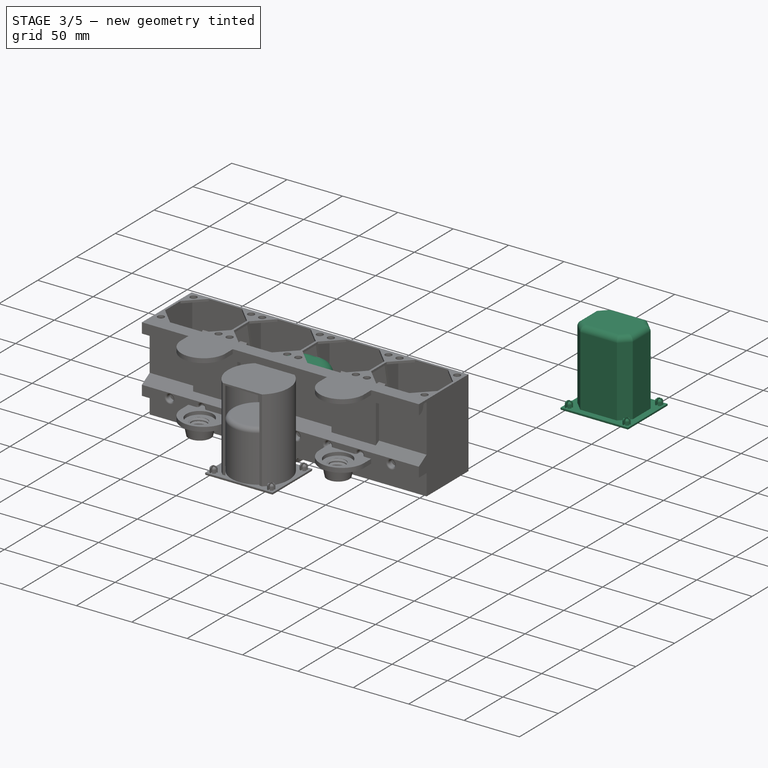
[diagram: stage 3 of 5 — iso view after this stage's code; geometry added in this stage tinted green]
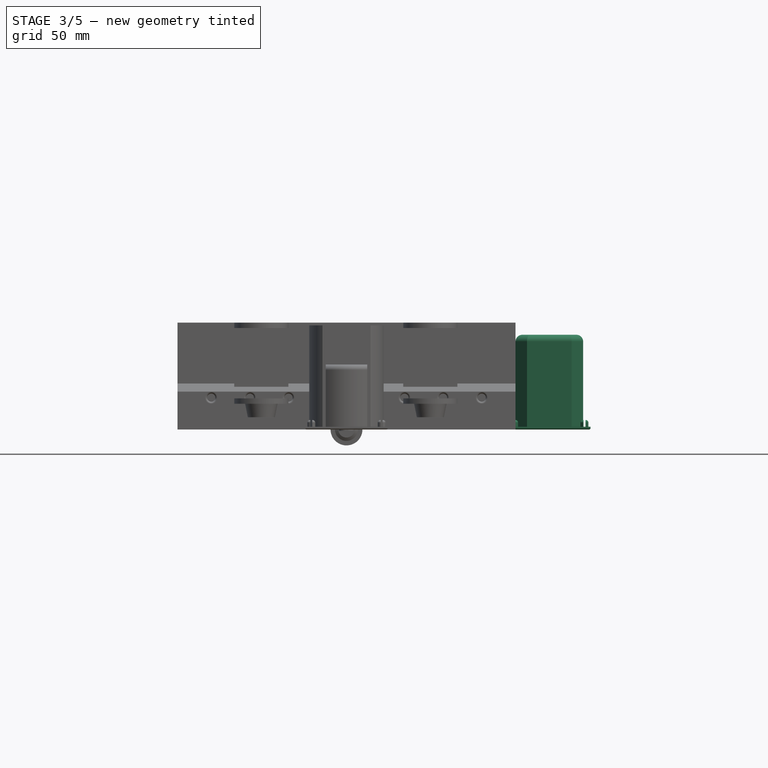
[diagram: stage 3 of 5 — front view after this stage's code; geometry added in this stage tinted green]
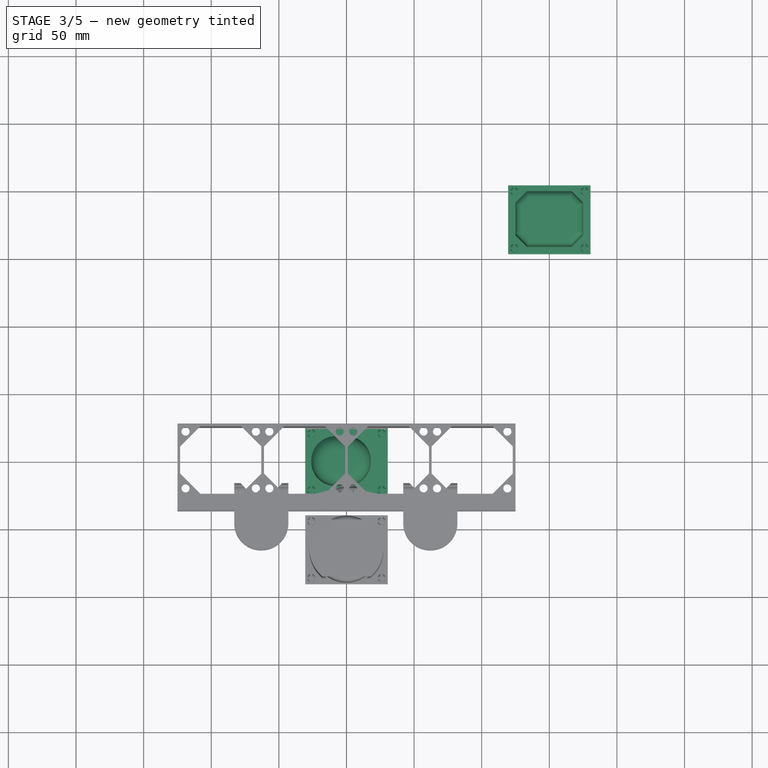
[diagram: stage 3 of 5 — top view after this stage's code; geometry added in this stage tinted green]
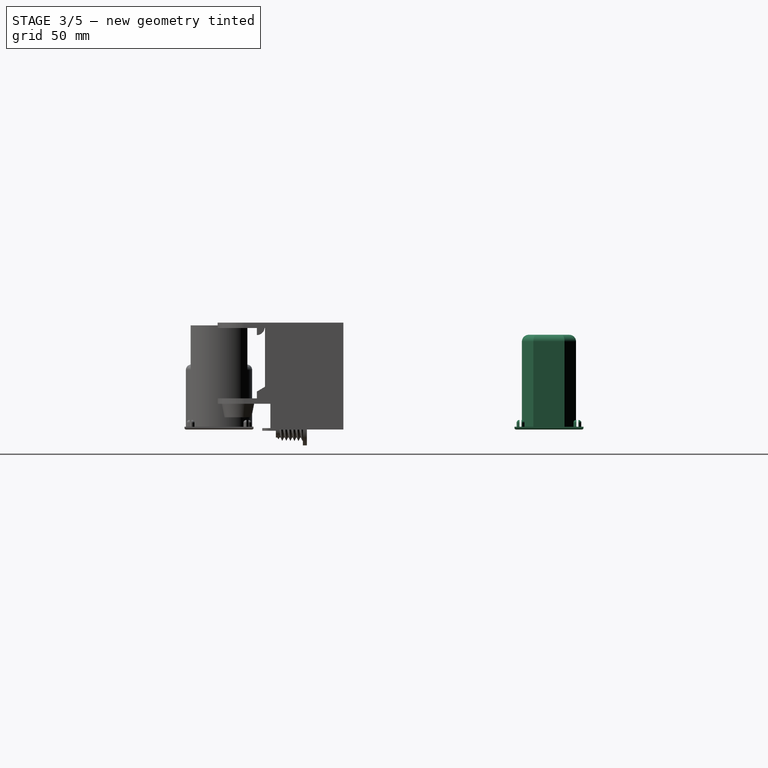
[diagram: stage 3 of 5 — right view after this stage's code; geometry added in this stage tinted green]
FEATURE [PartDesign::Body] Body011  label="Round-33"
  BaseFeature = -> Body
  Group = -> [Clone004,DatumPlane006,Sketch044,Pocket011,Fillet021]
  Origin = -> Origin015
  Placement = pos=(149,-65,0) rot=(0,0,1;0rad)
  Tip = -> Fillet021
FEATURE [PartDesign::FeatureBase] Clone005
  BaseFeature = -> Body
FEATURE [PartDesign::Plane] DatumPlane007
  Length = 77.7875
  MapMode = 5
  Placement = pos=(0,0,0) rot=(1,0,0;3.14159rad)
  ResizeMode = 0
  Support = -> [Clone005]
  Width = 132.287
FEATURE [Sketcher::SketchObject] Sketch045
  FullyConstrained = true
  MapMode = 5
  Placement = pos=(0,0,0) rot=(1,0,0;3.14159rad)
  Support = -> [DatumPlane007]
  sketch-geometry (1):
    g0: Circle CenterX=0 CenterY=0 CenterZ=0 NormalX=0 NormalY=0 NormalZ=1 AngleXU=0 Radius=18
  constraints (2):
    c: Diameter(g0) = 36
    c: Coincident(g0,g-1)
FEATURE [PartDesign::Pad] Pad014
  BaseFeature = -> Clone005
  Direction = (0,0,-1)
  Length = 66
  Length2 = 10
  Profile = -> Sketch045
  ReferenceAxis = -> Sketch045 [N_Axis]
  Reversed = true
  Type = 0
FEATURE [Sketcher::SketchObject] Sketch046
  FullyConstrained = true
  MapMode = 5
  Placement = pos=(0,0,0) rot=(1,0,0;3.14159rad)
  Support = -> [DatumPlane007]
  sketch-geometry (1):
    g0: Circle CenterX=0 CenterY=0 CenterZ=0 NormalX=0 NormalY=0 NormalZ=1 AngleXU=0 Radius=17
  constraints (2):
    c: Coincident(g0,g-1)
    c: Diameter(g0) = 34
FEATURE [PartDesign::Pocket] Pocket012
  BaseFeature = -> Pad014
  Direction = (0,0,1)
  Length = 64
  Length2 = 5
  Profile = -> Sketch046
  ReferenceAxis = -> Sketch046 [N_Axis]
  Type = 0
FEATURE [PartDesign::Body] Body020  label="QuarterBucket-Deep"
  BaseFeature = -> Body014
  Group = -> [Clone013,DatumPlane018,Sketch055,Pad018,DatumPlane019,Sketch056,Pad019]
  Origin = -> Origin026
  Placement = pos=(72,0,0) rot=(0,0,1;0rad)
  Tip = -> Pad019
FEATURE [PartDesign::FeatureBase] BaseFeature
  BaseFeature = -> Body
FEATURE [PartDesign::Plane] DatumPlane022
  Length = 60
  MapMode = 5
  Placement = pos=(0,0,0) rot=(1,0,0;3.14159rad)
  ResizeMode = 0
  Support = -> [BaseFeature]
  Width = 60
FEATURE [Sketcher::SketchObject] Sketch060
  FullyConstrained = true
  MapMode = 5
  Placement = pos=(0,0,0) rot=(1,0,0;3.14159rad)
  Support = -> [DatumPlane022]
  sketch-geometry (8):
    g0: LineSegment StartX=-25 StartY=11.5147 StartZ=0 EndX=-16.5147 EndY=20 EndZ=0
    g1: LineSegment StartX=-16.5147 StartY=20 StartZ=0 EndX=16.5147 EndY=20 EndZ=0
    g2: LineSegment StartX=16.5147 StartY=20 StartZ=0 EndX=25 EndY=11.5147 EndZ=0
    g3: LineSegment StartX=25 StartY=11.5147 StartZ=0 EndX=25 EndY=-11.5147 EndZ=0
    g4: LineSegment StartX=25 StartY=-11.5147 StartZ=0 EndX=16.5147 EndY=-20 EndZ=0
    g5: LineSegment StartX=16.5147 StartY=-20 StartZ=0 EndX=-16.5147 EndY=-20 EndZ=0
    g6: LineSegment StartX=-16.5147 StartY=-20 StartZ=0 EndX=-25 EndY=-11.5147 EndZ=0
    g7: LineSegment StartX=-25 StartY=-11.5147 StartZ=0 EndX=-25 EndY=11.5147 EndZ=0
  constraints (22):
    c: Coincident(g0,g1)
    c: Horizontal(g1)
    c: Coincident(g1,g2)
    c: Coincident(g2,g3)
    c: Vertical(g3)
    c: Coincident(g3,g4)
    c: Coincident(g4,g5)
    c: Horizontal(g5)
    c: Coincident(g5,g6)
    c: Coincident(g6,g7)
    c: Coincident(g7,g0)
    c: Vertical(g7)
    c: Angle(g0) = 0.785398
    c: Angle(g2) = -0.785398
    c: Angle(g4) = -2.35619
    c: Angle(g6) = 2.35619
    c: Equal(g2,g4)
    c: Symmetric(g0,g2,g-2)
    c: Symmetric(g0,g5,g-1)
    c: DistanceX(g0,g2) = 50
    c: DistanceY(g5,g0) = 40
    c: Distance(g0) = 12
FEATURE [Sketcher::SketchObject] Sketch061
  FullyConstrained = true
  MapMode = 5
  Placement = pos=(0,0,0) rot=(1,0,0;3.14159rad)
  Support = -> [DatumPlane022]
  sketch-geometry (8):
    g0: LineSegment StartX=-23.5 StartY=11.4289 StartZ=0 EndX=-16.4289 EndY=18.5 EndZ=0
    g1: LineSegment StartX=-16.4289 StartY=18.5 StartZ=0 EndX=16.4289 EndY=18.5 EndZ=0
    g2: LineSegment StartX=16.4289 StartY=18.5 StartZ=0 EndX=23.5 EndY=11.4289 EndZ=0
    g3: LineSegment StartX=23.5 StartY=11.4289 StartZ=0 EndX=23.5 EndY=-11.4289 EndZ=0
    g4: LineSegment StartX=23.5 StartY=-11.4289 StartZ=0 EndX=16.4289 EndY=-18.5 EndZ=0
    g5: LineSegment StartX=16.4289 StartY=-18.5 StartZ=0 EndX=-16.4289 EndY=-18.5 EndZ=0
    g6: LineSegment StartX=-16.4289 StartY=-18.5 StartZ=0 EndX=-23.5 EndY=-11.4289 EndZ=0
    g7: LineSegment StartX=-23.5 StartY=-11.4289 StartZ=0 EndX=-23.5 EndY=11.4289 EndZ=0
  constraints (22):
    c: Coincident(g0,g1)
    c: Horizontal(g1)
    c: Coincident(g1,g2)
    c: Coincident(g2,g3)
    c: Vertical(g3)
    c: Coincident(g3,g4)
    c: Coincident(g4,g5)
    c: Horizontal(g5)
    c: Coincident(g5,g6)
    c: Coincident(g6,g7)
    c: Coincident(g7,g0)
    c: Vertical(g7)
    c: Angle(g0) = 0.785398
    c: Angle(g2) = -0.785398
    c: Angle(g4) = -2.35619
    c: Angle(g6) = 2.35619
    c: Equal(g7,g3)
    c: Symmetric(g0,g2,g-2)
    c: Symmetric(g0,g5,g-1)
    c: DistanceY(g5,g0) = 37
    c: DistanceX(g0,g2) = 47
    c: Distance(g0) = 10
FEATURE [PartDesign::Pad] Pad025
  BaseFeature = -> BaseFeature
  Direction = (0,0,-1)
  Length = 70
  Length2 = 10
  Profile = -> Sketch060
  ReferenceAxis = -> Sketch060 [N_Axis]
  Reversed = true
  Type = 0
FEATURE [PartDesign::Pocket] Pocket018
  BaseFeature = -> Pad025
  Direction = (0,0,1)
  Length = 68
  Length2 = 5
  Profile = -> Sketch061
  ReferenceAxis = -> Sketch061 [N_Axis]
  Type = 0
FEATURE [PartDesign::Body] Body022  label="FullBucket"
  BaseFeature = -> Body
  Group = -> [BaseFeature,DatumPlane022,Sketch060,Pad025,Sketch061,Pocket018]
  Origin = -> Origin028
  Placement = pos=(225,179,0) rot=(0,0,1;0rad)
  Tip = -> Pocket018
FEATURE [PartDesign::FeatureBase] Clone015
  BaseFeature = -> Body022
FEATURE [PartDesign::Plane] DatumPlane023
  Length = 60
  MapMode = 5
  Placement = pos=(0,18.5,0) rot=(1,0,0;1.5708rad)
  ResizeMode = 0
  Support = -> [Clone015]
  Width = 60
FEATURE [PartDesign::Plane] DatumPlane024
  Length = 60
  MapMode = 5
  Placement = pos=(23.5,0,0) rot=(0.57735,-0.57735,-0.57735;2.0944rad)
  ResizeMode = 0
  Support = -> [Clone016]
  Width = 60
FEATURE [Sketcher::SketchObject] Sketch062
  FullyConstrained = true
  MapMode = 5
  Placement = pos=(0,18.5,0) rot=(1,0,0;1.5708rad)
  Support = -> [DatumPlane023]
  sketch-geometry (4):
    g0: LineSegment StartX=-0.75 StartY=68 StartZ=0 EndX=0.75 EndY=68 EndZ=0
    g1: LineSegment StartX=0.75 StartY=68 StartZ=0 EndX=0.75 EndY=0 EndZ=0
    g2: LineSegment StartX=0.75 StartY=0 StartZ=0 EndX=-0.75 EndY=0 EndZ=0
    g3: LineSegment StartX=-0.75 StartY=0 StartZ=0 EndX=-0.75 EndY=68 EndZ=0
  constraints (11):
    c: Coincident(g0,g1)
    c: Coincident(g1,g2)
    c: Coincident(g2,g3)
    c: Coincident(g3,g0)
    c: Horizontal(g0)
    c: Vertical(g1)
    c: Vertical(g3)
    c: PointOnObject(g1,g-1)
    c: Symmetric(g1,g2,g-2)
    c: DistanceX(g2,g1) = 1.5
    c: DistanceY(g3,g3) = 68
FEATURE [PartDesign::Pad] Pad023
  BaseFeature = -> Clone015
  Direction = (0,-1,2e-16)
  Length = 10
  Length2 = 10
  Profile = -> Sketch062
  ReferenceAxis = -> Sketch062 [N_Axis]
  Type = 3
  UpToFace = -> Clone015 [Face106]
FEATURE [PartDesign::Fillet] Fillet025
  Base = -> Pad023 [Face119,Face116,Face78]
  BaseFeature = -> Pad023
  Radius = 5
  SupportTransform = false
  UseAllEdges = false
FEATURE [PartDesign::Body] Body024  label="OtherHalfBucket"
  BaseFeature = -> Body022
  Group = -> [Clone016,DatumPlane024,Sketch063,Pad024,Fillet027]
  Origin = -> Origin030
  Placement = pos=(74,180,0) rot=(0,0,1;0rad)
  Tip = -> Fillet027
FEATURE [PartDesign::FeatureBase] Clone017
  BaseFeature = -> Body023
  Placement = pos=(150,179,0) rot=(0,0,1;0rad)
FEATURE [PartDesign::Plane] DatumPlane025
  Length = 224.199
  MapMode = 5
  Placement = pos=(173.5,179,0) rot=(0.57735,-0.57735,-0.57735;2.0944rad)
  ResizeMode = 0
  Support = -> [Clone017]
  Width = 70.199
FEATURE [Sketcher::SketchObject] Sketch064
  FullyConstrained = true
  MapMode = 5
  Placement = pos=(173.5,179,0) rot=(0.57735,-0.57735,-0.57735;2.0944rad)
  Support = -> [DatumPlane025]
  sketch-geometry (4):
    g0: LineSegment StartX=-0.5 StartY=68 StartZ=0 EndX=0.5 EndY=68 EndZ=0
    g1: LineSegment StartX=0.5 StartY=68 StartZ=0 EndX=0.5 EndY=0 EndZ=0
    g2: LineSegment StartX=0.5 StartY=0 StartZ=0 EndX=-0.5 EndY=0 EndZ=0
    g3: LineSegment StartX=-0.5 StartY=0 StartZ=0 EndX=-0.5 EndY=68 EndZ=0
  constraints (11):
    c: Coincident(g0,g1)
    c: Coincident(g1,g2)
    c: Coincident(g2,g3)
    c: Coincident(g3,g0)
    c: Horizontal(g0)
    c: Vertical(g1)
    c: Vertical(g3)
    c: PointOnObject(g1,g-1)
    c: Symmetric(g1,g2,g-2)
    c: DistanceX(g2,g2) = 1
    c: DistanceY(g3,g3) = 68
FEATURE [PartDesign::Pad] Pad026
  BaseFeature = -> Clone017
  Direction = (-1,0,0)
  Length = 10
  Length2 = 10
  Placement = pos=(150,179,0) rot=(0,0,1;0rad)
  Profile = -> Sketch064
  ReferenceAxis = -> Sketch064 [N_Axis]
  Type = 3
  UpToFace = -> Clone017 [Face123]
FEATURE [PartDesign::Body] Body025  label="QuarterBucket"
  BaseFeature = -> Body023
  Group = -> [Clone017,DatumPlane025,Sketch064,Pad026]
  Origin = -> Origin031
  Placement = pos=(147,1,0) rot=(0,0,1;0rad)
  Tip = -> Pad026
FEATURE [Spreadsheet::Sheet] Spreadsheet  label="Sizes"
  cells = A1=Name; B1=Value; A2=small_syringe_radius; B2(small_syringe_radius)=3.85; A3=small_round_radius; B3(small_round_radius)=18
FEATURE [Sketcher::SketchObject] Sketch065
  FullyConstrained = true
  MapMode = 5
  Support = -> [XY_Plane032]
  sketch-geometry (4):
    g0: LineSegment StartX=-30.5 StartY=25.5 StartZ=0 EndX=30.5 EndY=25.5 EndZ=0
    g1: LineSegment StartX=30.5 StartY=25.5 StartZ=0 EndX=30.5 EndY=-25.5 EndZ=0
    g2: LineSegment StartX=30.5 StartY=-25.5 StartZ=0 EndX=-30.5 EndY=-25.5 EndZ=0
    g3: LineSegment StartX=-30.5 StartY=-25.5 StartZ=0 EndX=-30.5 EndY=25.5 EndZ=0
  constraints (10):
    c: Coincident(g0,g1)
    c: Coincident(g1,g2)
    c: Coincident(g2,g3)
    c: Coincident(g3,g0)
    c: Horizontal(g2)
    c: Vertical(g1)
    c: DistanceY(g3,g3) = 51
    c: DistanceX(g0,g0) = 61
    c: Symmetric(g0,g0,g-2)
    c: Symmetric(g0,g2,g-1)
FEATURE [PartDesign::Pad] Pad027
  Direction = (0,0,1)
  Length = 2
  Length2 = 10
  Profile = -> Sketch065
  ReferenceAxis = -> Sketch065 [N_Axis]
  Type = 0
FEATURE [PartDesign::Plane] DatumPlane026
  Length = 72.1553
  MapMode = 5
  Placement = pos=(0,0,2) rot=(0,0,1;0rad)
  ResizeMode = 0
  Support = -> [Pad027]
  Width = 62.1553
FEATURE [Sketcher::SketchObject] Sketch066
  FullyConstrained = true
  MapMode = 5
  Placement = pos=(0,0,2) rot=(0,0,1;0rad)
  Support = -> [DatumPlane026]
  sketch-geometry (1):
    g0: Circle CenterX=-26 CenterY=21 CenterZ=0 NormalX=0 NormalY=0 NormalZ=1 AngleXU=0 Radius=3
  constraints (3):
    c: DistanceX(g0,g-1) = 26
    c: DistanceY(g-1,g0) = 21
    c: Radius(g0) = 3
FEATURE [PartDesign::Mirrored] Mirrored006
  MirrorPlane = -> Sketch066 [V_Axis]
FEATURE [PartDesign::Mirrored] Mirrored007
  MirrorPlane = -> Sketch066 [H_Axis]
FEATURE [PartDesign::Pad] Pad028
  BaseFeature = -> Pad027
  Direction = (0,0,1)
  Length = 5
  Length2 = 10
  Profile = -> Sketch066
  ReferenceAxis = -> Sketch066 [N_Axis]
  Type = 0
FEATURE [PartDesign::MultiTransform] MultiTransform005
  BaseFeature = -> Pad028
  Originals = -> [Pad028]
  Transformations = -> [Mirrored006,Mirrored007]
FEATURE [PartDesign::Fillet] Fillet029
  Base = -> MultiTransform005 [Face14,Face12,Face11,Face13]
  BaseFeature = -> MultiTransform005
  Radius = 2
  SupportTransform = false
  UseAllEdges = false
FEATURE [PartDesign::Fillet] Fillet030
  Base = -> Fillet029 [Face12]
  BaseFeature = -> Fillet029
  Radius = 1
  SupportTransform = false
  UseAllEdges = false
FEATURE [PartDesign::Plane] DatumPlane027
  Length = 72.1553
  MapMode = 5
  Placement = pos=(0,0,7) rot=(0,0,1;0rad)
  ResizeMode = 0
  Support = -> [Fillet030]
  Width = 62.1553
FEATURE [Sketcher::SketchObject] Sketch067
  FullyConstrained = false
  MapMode = 5
  Placement = pos=(0,0,7) rot=(0,0,1;0rad)
  Support = -> [DatumPlane027]
  sketch-geometry (12):
    g0: LineSegment StartX=-29.2656 StartY=-20.2829 StartZ=0 EndX=-26.7656 EndY=-20.2829 EndZ=0
    g1: LineSegment StartX=-26.7656 StartY=-20.2829 StartZ=0 EndX=-26.7656 EndY=-17.7829 EndZ=0
    g2: LineSegment StartX=-26.7656 StartY=-17.7829 StartZ=0 EndX=-25.2656 EndY=-17.7829 EndZ=0
    g3: LineSegment StartX=-25.2656 StartY=-17.7829 StartZ=0 EndX=-25.2656 EndY=-20.2829 EndZ=0
    g4: LineSegment StartX=-25.2656 StartY=-20.2829 StartZ=0 EndX=-22.7656 EndY=-20.2829 EndZ=0
    g5: LineSegment StartX=-22.7656 StartY=-20.2829 StartZ=0 EndX=-22.7656 EndY=-21.7829 EndZ=0
    g6: LineSegment StartX=-22.7656 StartY=-21.7829 StartZ=0 EndX=-25.2656 EndY=-21.7829 EndZ=0
    g7: LineSegment StartX=-25.2656 StartY=-21.7829 StartZ=0 EndX=-25.2656 EndY=-24.2829 EndZ=0
    g8: LineSegment StartX=-25.2656 StartY=-24.2829 StartZ=0 EndX=-26.7656 EndY=-24.2829 EndZ=0
    g9: LineSegment StartX=-26.7656 StartY=-24.2829 StartZ=0 EndX=-26.7656 EndY=-21.7829 EndZ=0
    g10: LineSegment StartX=-26.7656 StartY=-21.7829 StartZ=0 EndX=-29.2656 EndY=-21.7829 EndZ=0
    g11: LineSegment StartX=-29.2656 StartY=-21.7829 StartZ=0 EndX=-29.2656 EndY=-20.2829 EndZ=0
  constraints (34):
    c: Horizontal(g0)
    c: Coincident(g0,g1)
    c: Vertical(g1)
    c: Coincident(g1,g2)
    c: Horizontal(g2)
    c: Coincident(g2,g3)
    c: Vertical(g3)
    c: Coincident(g3,g4)
    c: Coincident(g4,g5)
    c: Coincident(g5,g6)
    c: Coincident(g6,g7)
    c: Coincident(g7,g8)
    c: Coincident(g8,g9)
    c: Vertical(g9)
    c: Coincident(g9,g10)
    c: Horizontal(g10)
    c: Coincident(g10,g11)
    c: Coincident(g11,g0)
    c: DistanceX(g2,g2) = 1.5
    c: Equal(g2,g5)
    c: Equal(g5,g8)
    c: Equal(g8,g11)
    c: DistanceX(g0,g0) = 2.5
    c: Equal(g0,g1)
    c: Equal(g1,g3)
    c: Equal(g3,g4)
    c: Equal(g4,g6)
    c: Equal(g6,g7)
    c: Equal(g7,g9)
    c: Equal(g9,g10)
    c: Horizontal(g6)
    c: Vertical(g11)
    c: Vertical(g5)
    c: Vertical(g7)
FEATURE [PartDesign::Mirrored] Mirrored008
  MirrorPlane = -> Sketch067 [V_Axis]
FEATURE [PartDesign::Mirrored] Mirrored009
  MirrorPlane = -> Sketch067 [H_Axis]
FEATURE [PartDesign::Pocket] Pocket019
  BaseFeature = -> Fillet030
  Direction = (0,0,-1)
  Length = 5
  Length2 = 5
  Profile = -> Sketch067
  ReferenceAxis = -> Sketch067 [N_Axis]
  Type = 0
FEATURE [PartDesign::MultiTransform] MultiTransform006
  BaseFeature = -> Pocket019
  Originals = -> [Pocket019]
  Transformations = -> [Mirrored008,Mirrored009]
FEATURE [PartDesign::Body] Body026  label="Blank001"
  Group = -> [Sketch065,Pad027,DatumPlane026,Sketch066,Pad028,MultiTransform005,Mirrored006,Mirrored007,Fillet029,Fillet030,DatumPlane027,Sketch067,Pocket019,MultiTransform006,Mirrored008,Mirrored009]
  Origin = -> Origin032
  Placement = pos=(0,-65,0) rot=(0,0,1;0rad)
  Tip = -> MultiTransform006
FEATURE [PartDesign::FeatureBase] Clone018
  BaseFeature = -> Body026
FEATURE [PartDesign::Plane] DatumPlane028
  Length = 60
  MapMode = 5
  Placement = pos=(0,0,0) rot=(1,0,0;3.14159rad)
  ResizeMode = 0
  Support = -> [Clone018]
  Width = 60
FEATURE [Sketcher::SketchObject] Sketch068
  AttachmentOffset = pos=(-8,0,0) rot=(0,0,1;0rad)
  FullyConstrained = true
  MapMode = 5
  Placement = pos=(-8,0,0) rot=(1,0,0;3.14159rad)
  Support = -> [DatumPlane028]
  sketch-geometry (1):
    g0: Circle CenterX=0 CenterY=0 CenterZ=0 NormalX=0 NormalY=0 NormalZ=1 AngleXU=0 Radius=18
  constraints (2):
    c: Diameter(g0) = 36
    c: Coincident(g0,g-1)
FEATURE [PartDesign::Pad] Pad029
  BaseFeature = -> Clone018
  Direction = (0,0,-1)
  Length = 66
  Length2 = 10
  Profile = -> Sketch068
  ReferenceAxis = -> Sketch068 [N_Axis]
  Reversed = true
  Type = 0
FEATURE [Sketcher::SketchObject] Sketch069
  AttachmentOffset = pos=(-8,0,0) rot=(0,0,1;0rad)
  FullyConstrained = true
  MapMode = 5
  Placement = pos=(-8,0,0) rot=(1,0,0;3.14159rad)
  Support = -> [DatumPlane028]
  expr: Constraints[2] = <<Sizes>>.small_syringe_radius
  sketch-geometry (3):
    g0: Circle CenterX=0 CenterY=0 CenterZ=0 NormalX=0 NormalY=0 NormalZ=1 AngleXU=0 Radius=17
    g1: Circle CenterX=26 CenterY=9 CenterZ=0 NormalX=0 NormalY=0 NormalZ=1 AngleXU=0 Radius=3.85
    g2: Circle CenterX=26 CenterY=-9 CenterZ=0 NormalX=0 NormalY=0 NormalZ=1 AngleXU=0 Radius=3.85
  constraints (7):
    c: Coincident(g0,g-1)
    c: Diameter(g0) = 34
    c: Radius(g1) = 3.85
    c: Equal(g1,g2)
    c: Symmetric(g1,g2,g-1)
    c: DistanceY(g-1,g1) = 9
    c: DistanceX(g-1,g1) = 26
FEATURE [PartDesign::Pocket] Pocket020
  BaseFeature = -> Pad029
  Direction = (0,0,1)
  Length = 64
  Length2 = 5
  Profile = -> Sketch069
  ReferenceAxis = -> Sketch069 [N_Axis]
  Type = 0
FEATURE [PartDesign::Fillet] Fillet031
  Base = -> Pocket020 [Face101,Face73]
  BaseFeature = -> Pocket020
  Radius = 10
  SupportTransform = false
  UseAllEdges = false
FEATURE [PartDesign::Fillet] Fillet032
  Base = -> Fillet031 [Edge118,Edge137,Edge245]
  BaseFeature = -> Fillet031
  Radius = 1.5
  SupportTransform = false
  UseAllEdges = false
FEATURE [PartDesign::Body] Body027  label="RoundOffset-34x64"
  BaseFeature = -> Body026
  Group = -> [Clone018,DatumPlane028,Sketch068,Pad029,Sketch069,Pocket020,Fillet031,Fillet032]
  Origin = -> Origin033
  Placement = pos=(74,-125,0) rot=(0,0,1;0rad)
  Tip = -> Fillet032
FEATURE [PartDesign::Fillet] Fillet033
  Base = -> Pocket012 [Face99,Face84]
  BaseFeature = -> Pocket012
  Radius = 10
  SupportTransform = false
  UseAllEdges = false
FEATURE [PartDesign::Fillet] Fillet034
  Base = -> Fillet033 [Edge239]
  BaseFeature = -> Fillet033
  Radius = 2
  SupportTransform = false
  UseAllEdges = false
FEATURE [PartDesign::Fillet] Fillet036
  Base = -> Pad034 [Edge61,Edge64]
  BaseFeature = -> Pad034
  Placement = pos=(0,0,0) rot=(1,0,0;1.5708rad)
  Radius = 5
  SupportTransform = false
  UseAllEdges = false
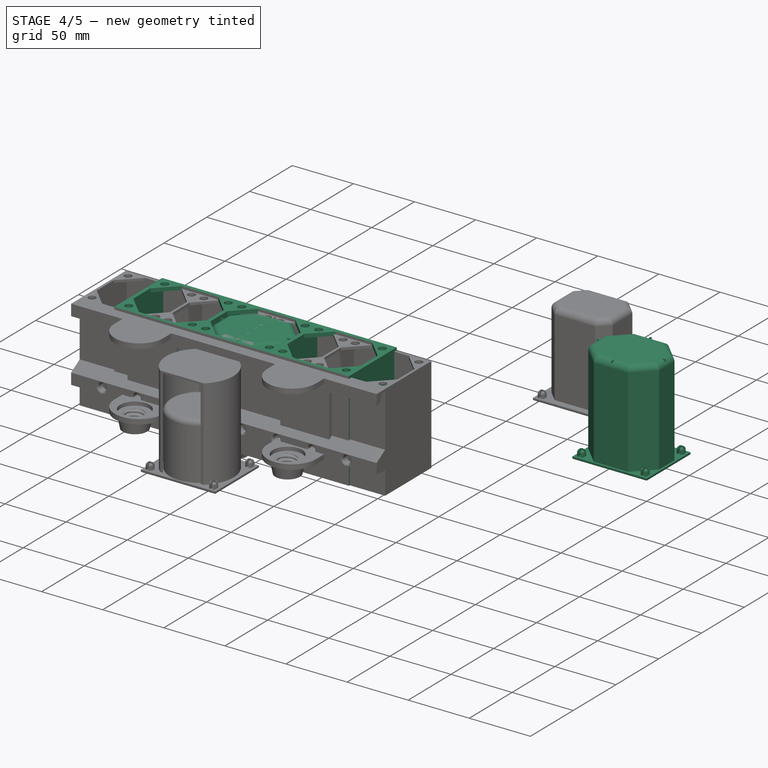
[diagram: stage 4 of 5 — iso view after this stage's code; geometry added in this stage tinted green]
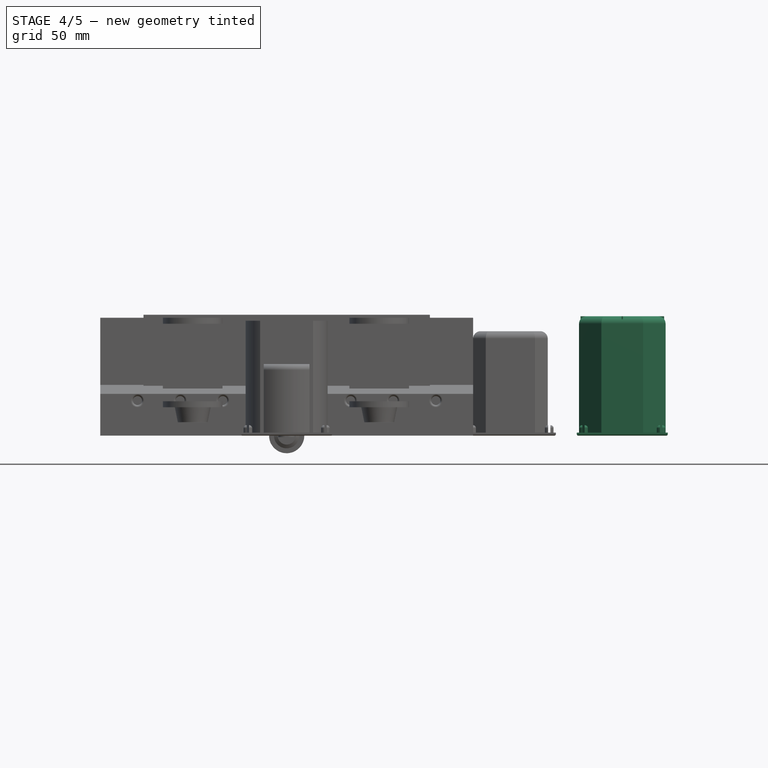
[diagram: stage 4 of 5 — front view after this stage's code; geometry added in this stage tinted green]
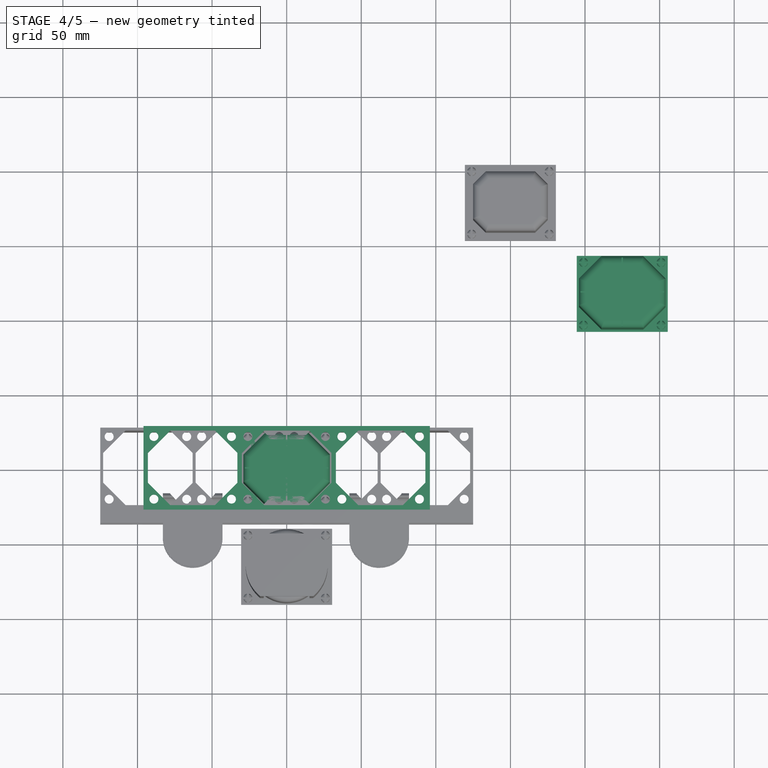
[diagram: stage 4 of 5 — top view after this stage's code; geometry added in this stage tinted green]
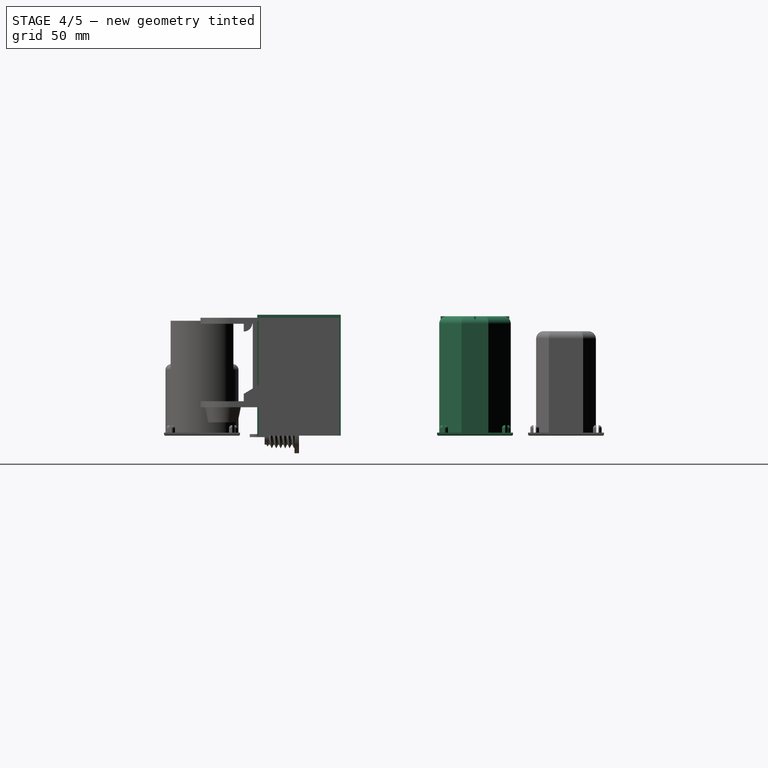
[diagram: stage 4 of 5 — right view after this stage's code; geometry added in this stage tinted green]
FEATURE [PartDesign::FeatureBase] Clone006
  BaseFeature = -> MultiTransform001
FEATURE [PartDesign::Plane] DatumPlane008
  Length = 60
  MapMode = 5
  Placement = pos=(0,0,0) rot=(1,0,0;3.14159rad)
  ResizeMode = 0
  Support = -> [Clone006]
  Width = 60
FEATURE [Sketcher::SketchObject] Sketch047
  AttachmentOffset = pos=(20,15,0) rot=(0,0,1;0rad)
  FullyConstrained = false
  MapMode = 5
  Placement = pos=(20,-15,0) rot=(1,0,0;3.14159rad)
  Support = -> [DatumPlane008]
  sketch-geometry (1):
    g0: Circle CenterX=0 CenterY=0 CenterZ=0 NormalX=0 NormalY=0 NormalZ=1 AngleXU=0 Radius=3.85
  constraints (1):
    c: Diameter(g0) = 7.7
FEATURE [PartDesign::Pocket] Pocket013
  BaseFeature = -> Clone006
  Direction = (0,0,1)
  Length = 5
  Length2 = 5
  Profile = -> Sketch047
  ReferenceAxis = -> Sketch047 [N_Axis]
  Type = 0
FEATURE [PartDesign::Body] Body013  label="SmallSyringes"
  BaseFeature = -> MultiTransform001
  Group = -> [Clone006,DatumPlane008,Sketch047,Pocket013,MultiTransform002,LinearPattern,LinearPattern001]
  Origin = -> Origin017
  Placement = pos=(224,61,0) rot=(0,0,1;0rad)
  Tip = -> MultiTransform002
FEATURE [Sketcher::SketchObject] StructureSketch001
  FullyConstrained = true
  MapMode = 5
  Support = -> [XY_Plane018]
  sketch-geometry (4):
    g0: LineSegment StartX=-96 StartY=-28 StartZ=0 EndX=96 EndY=-28 EndZ=0
    g1: LineSegment StartX=96 StartY=-28 StartZ=0 EndX=96 EndY=28 EndZ=0
    g2: LineSegment StartX=96 StartY=28 StartZ=0 EndX=-96 EndY=28 EndZ=0
    g3: LineSegment StartX=-96 StartY=28 StartZ=0 EndX=-96 EndY=-28 EndZ=0
  constraints (10):
    c: Coincident(g0,g1)
    c: Coincident(g1,g2)
    c: Coincident(g2,g3)
    c: Coincident(g3,g0)
    c: Horizontal(g2)
    c: Vertical(g3)
    c: DistanceX(g0,g0) = 192
    c: DistanceY(g1,g1) = 56
    c: Symmetric(g0,g0,g-2)
    c: Symmetric(g1,g1,g-1)
FEATURE [PartDesign::Pad] MainStructure001
  Direction = (0,0,1)
  Length = 81
  Length2 = 10
  Profile = -> StructureSketch001
  ReferenceAxis = -> StructureSketch001 [N_Axis]
  Type = 0
FEATURE [PartDesign::Plane] DatumPlane009
  Length = 212.738
  MapMode = 2
  ResizeMode = 0
  Support = -> [MainStructure001]
  Width = 76.7384
FEATURE [Sketcher::SketchObject] ZoneFillSketch001
  AttachmentOffset = pos=(63,0,0) rot=(0,0,1;0rad)
  FullyConstrained = true
  MapMode = 5
  Placement = pos=(63,0,0) rot=(0,0,1;0rad)
  Support = -> [DatumPlane009]
  sketch-geometry (4):
    g0: LineSegment StartX=-30 StartY=25 StartZ=0 EndX=30 EndY=25 EndZ=0
    g1: LineSegment StartX=30 StartY=25 StartZ=0 EndX=30 EndY=-25 EndZ=0
    g2: LineSegment StartX=30 StartY=-25 StartZ=0 EndX=-30 EndY=-25 EndZ=0
    g3: LineSegment StartX=-30 StartY=-25 StartZ=0 EndX=-30 EndY=25 EndZ=0
  constraints (10):
    c: Coincident(g0,g1)
    c: Coincident(g1,g2)
    c: Coincident(g2,g3)
    c: Coincident(g3,g0)
    c: DistanceX(g0,g0) = 60
    c: DistanceY(g1,g1) = 50
    c: Symmetric(g0,g0,g-2)
    c: Symmetric(g1,g1,g-1)
    c: Equal(g0,g2)
    c: Equal(g1,g3)
FEATURE [Sketcher::SketchObject] ZoneSketch001
  AttachmentOffset = pos=(63,0,0) rot=(0,0,1;0rad)
  FullyConstrained = false
  MapMode = 5
  Placement = pos=(63,0,0) rot=(0,0,1;0rad)
  Support = -> [DatumPlane009]
  sketch-geometry (12):
    g0: LineSegment StartX=-15 StartY=25 StartZ=0 EndX=15 EndY=25 EndZ=0
    g1: LineSegment StartX=15 StartY=25 StartZ=0 EndX=30 EndY=10 EndZ=0
    g2: LineSegment StartX=30 StartY=10 StartZ=0 EndX=30 EndY=-10 EndZ=0
    g3: LineSegment StartX=30 StartY=-10 StartZ=0 EndX=15 EndY=-25 EndZ=0
    g4: LineSegment StartX=15 StartY=-25 StartZ=0 EndX=-15 EndY=-25 EndZ=0
    g5: LineSegment StartX=-15 StartY=-25 StartZ=0 EndX=-30 EndY=-10 EndZ=0
    g6: LineSegment StartX=-30 StartY=-10 StartZ=0 EndX=-30 EndY=10 EndZ=0
    g7: LineSegment StartX=-30 StartY=10 StartZ=0 EndX=-15 EndY=25 EndZ=0
    g8: Circle CenterX=-26 CenterY=21 CenterZ=0 NormalX=0 NormalY=0 NormalZ=1 AngleXU=0 Radius=3
    g9: Circle CenterX=26 CenterY=21 CenterZ=0 NormalX=0 NormalY=0 NormalZ=1 AngleXU=0 Radius=3
    g10: Circle CenterX=26 CenterY=-21 CenterZ=0 NormalX=0 NormalY=0 NormalZ=1 AngleXU=0 Radius=3
    g11: Circle CenterX=-26 CenterY=-21 CenterZ=0 NormalX=0 NormalY=0 NormalZ=1 AngleXU=0 Radius=3
  constraints (24):
    c: Coincident(g0,g1)
    c: Coincident(g1,g2)
    c: Coincident(g2,g3)
    c: Coincident(g3,g4)
    c: Coincident(g4,g5)
    c: Coincident(g5,g6)
    c: Coincident(g6,g7)
    c: Coincident(g7,g0)
    c: Horizontal(g4)
    c: Vertical(g6)
    c: DistanceX(g0,g0) = 30
    c: DistanceY(g2,g2) = 20
    c: DistanceX(g6,g2) = 60
    c: DistanceY(g4,g0) = 50
    c: Symmetric(g0,g0,g-2)
    c: Symmetric(g2,g2,g-1)
    c: Symmetric(g0,g4,g-1)
    c: Symmetric(g2,g6,g-2)
    c: Equal(g0,g4)
    c: Equal(g2,g6)
    c: Radius(g8) = 3
    c: Radius(g9) = 3
    c: Radius(g10) = 3
    c: Radius(g11) = 3
FEATURE [PartDesign::Pocket] CenterPocket001
  BaseFeature = -> MainStructure001
  Direction = (0,0,-1)
  Length = 81
  Length2 = 5
  Profile = -> ZoneSketch001
  ReferenceAxis = -> ZoneSketch001 [N_Axis]
  Reversed = true
  Type = 0
FEATURE [PartDesign::Pocket] CenterFillPocket001
  BaseFeature = -> CenterPocket001
  Direction = (0,0,-1)
  Length = 78
  Length2 = 5
  Profile = -> ZoneFillSketch001
  ReferenceAxis = -> ZoneFillSketch001 [N_Axis]
  Reversed = true
  Type = 0
FEATURE [PartDesign::LinearPattern] CenterPocketTransformX
  Direction = -> ZoneSketch001 [H_Axis]
  Length = 126
  Occurrences = 3
  Reversed = true
FEATURE [PartDesign::LinearPattern] CenterFillTransformX
  Direction = -> ZoneFillSketch001 [H_Axis]
  Length = 126
  Occurrences = 3
  Reversed = true
FEATURE [PartDesign::MultiTransform] CenterFillTransform001
  BaseFeature = -> CenterFillPocket001
  Originals = -> [CenterFillPocket001]
  Transformations = -> [CenterFillTransformX]
FEATURE [PartDesign::MultiTransform] CenterPocketTransform001
  BaseFeature = -> CenterFillTransform001
  Originals = -> [CenterPocket001]
  Transformations = -> [CenterPocketTransformX]
FEATURE [PartDesign::Body] Scaffolding_2x004  label="Scaffolding_3x1"
  Group = -> [StructureSketch001,MainStructure001,DatumPlane009,ZoneSketch001,CenterPocket001,CenterPocketTransformX,ZoneFillSketch001,CenterFillPocket001,CenterFillTransformX,CenterFillTransform001,CenterPocketTransform001]
  Origin = -> Origin018
  Tip = -> CenterFillPocket001
FEATURE [PartDesign::FeatureBase] Clone007
  BaseFeature = -> Body
FEATURE [PartDesign::Plane] DatumPlane010
  Length = 60
  MapMode = 5
  Placement = pos=(0,0,0) rot=(1,0,0;3.14159rad)
  ResizeMode = 0
  Support = -> [Clone007]
  Width = 60
FEATURE [Sketcher::SketchObject] Sketch048
  FullyConstrained = true
  MapMode = 5
  Placement = pos=(0,0,0) rot=(1,0,0;3.14159rad)
  Support = -> [DatumPlane010]
  sketch-geometry (8):
    g0: LineSegment StartX=-29 StartY=9 StartZ=0 EndX=-14 EndY=24 EndZ=0
    g1: LineSegment StartX=-14 StartY=24 StartZ=0 EndX=14 EndY=24 EndZ=0
    g2: LineSegment StartX=14 StartY=24 StartZ=0 EndX=29 EndY=9 EndZ=0
    g3: LineSegment StartX=29 StartY=9 StartZ=0 EndX=29 EndY=-9 EndZ=0
    g4: LineSegment StartX=29 StartY=-9 StartZ=0 EndX=14 EndY=-24 EndZ=0
    g5: LineSegment StartX=14 StartY=-24 StartZ=0 EndX=-14 EndY=-24 EndZ=0
    g6: LineSegment StartX=-14 StartY=-24 StartZ=0 EndX=-29 EndY=-9 EndZ=0
    g7: LineSegment StartX=-29 StartY=-9 StartZ=0 EndX=-29 EndY=9 EndZ=0
  constraints (22):
    c: Coincident(g0,g1)
    c: Horizontal(g1)
    c: Coincident(g1,g2)
    c: Coincident(g2,g3)
    c: Vertical(g3)
    c: Coincident(g3,g4)
    c: Coincident(g4,g5)
    c: Horizontal(g5)
    c: Coincident(g5,g6)
    c: Coincident(g6,g7)
    c: Coincident(g7,g0)
    c: Vertical(g7)
    c: Angle(g0) = 0.785398
    c: Angle(g2) = -0.785398
    c: Angle(g4) = -2.35619
    c: Angle(g6) = 2.35619
    c: Equal(g2,g4)
    c: Symmetric(g0,g2,g-2)
    c: Symmetric(g0,g5,g-1)
    c: DistanceY(g7,g7) = 18
    c: DistanceX(g1,g1) = 28
    c: DistanceX(g0,g2) = 58
FEATURE [PartDesign::Pad] Pad015
  BaseFeature = -> Clone007
  Direction = (0,0,-1)
  Length = 80
  Length2 = 10
  Profile = -> Sketch048
  ReferenceAxis = -> Sketch048 [N_Axis]
  Reversed = true
  Type = 0
FEATURE [Sketcher::SketchObject] Sketch049
  FullyConstrained = true
  MapMode = 5
  Placement = pos=(0,0,0) rot=(1,0,0;3.14159rad)
  Support = -> [DatumPlane010]
  sketch-geometry (8):
    g0: LineSegment StartX=-28 StartY=8 StartZ=0 EndX=-13 EndY=23 EndZ=0
    g1: LineSegment StartX=-13 StartY=23 StartZ=0 EndX=13 EndY=23 EndZ=0
    g2: LineSegment StartX=13 StartY=23 StartZ=0 EndX=28 EndY=8 EndZ=0
    g3: LineSegment StartX=28 StartY=8 StartZ=0 EndX=28 EndY=-8 EndZ=0
    g4: LineSegment StartX=28 StartY=-8 StartZ=0 EndX=13 EndY=-23 EndZ=0
    g5: LineSegment StartX=13 StartY=-23 StartZ=0 EndX=-13 EndY=-23 EndZ=0
    g6: LineSegment StartX=-13 StartY=-23 StartZ=0 EndX=-28 EndY=-8 EndZ=0
    g7: LineSegment StartX=-28 StartY=-8 StartZ=0 EndX=-28 EndY=8 EndZ=0
  constraints (22):
    c: Coincident(g0,g1)
    c: Horizontal(g1)
    c: Coincident(g1,g2)
    c: Coincident(g2,g3)
    c: Vertical(g3)
    c: Coincident(g3,g4)
    c: Coincident(g4,g5)
    c: Horizontal(g5)
    c: Coincident(g5,g6)
    c: Coincident(g6,g7)
    c: Coincident(g7,g0)
    c: Vertical(g7)
    c: Angle(g0) = 0.785398
    c: Angle(g2) = -0.785398
    c: Angle(g4) = -2.35619
    c: Angle(g6) = 2.35619
    c: Equal(g7,g3)
    c: Symmetric(g0,g2,g-2)
    c: Symmetric(g0,g5,g-1)
    c: DistanceX(g0,g2) = 56
    c: DistanceX(g1,g1) = 26
    c: DistanceY(g7,g7) = 16
FEATURE [PartDesign::Pocket] Pocket014
  BaseFeature = -> Pad015
  Direction = (0,0,1)
  Length = 78
  Length2 = 5
  Profile = -> Sketch049
  ReferenceAxis = -> Sketch049 [N_Axis]
  Type = 0
FEATURE [PartDesign::FeatureBase] Clone008
  BaseFeature = -> Body
FEATURE [PartDesign::FeatureBase] Clone010
  BaseFeature = -> Body
FEATURE [PartDesign::Plane] DatumPlane012
  Length = 60
  MapMode = 5
  Placement = pos=(0,0,0) rot=(1,0,0;3.14159rad)
  ResizeMode = 0
  Support = -> [Clone010]
  Width = 60
FEATURE [Sketcher::SketchObject] Sketch051
  AttachmentOffset = pos=(-17.5,-10,0) rot=(0,0,1;0rad)
  FullyConstrained = true
  MapMode = 5
  Placement = pos=(-17.5,10,0) rot=(1,0,0;3.14159rad)
  Support = -> [DatumPlane012]
  sketch-geometry (1):
    g0: Circle CenterX=0 CenterY=0 CenterZ=0 NormalX=0 NormalY=0 NormalZ=1 AngleXU=0 Radius=5.85
  constraints (2):
    c: Radius(g0) = 5.85
    c: Coincident(g0,g-1)
FEATURE [PartDesign::Pocket] Pocket015
  BaseFeature = -> Clone010
  Direction = (0,0,1)
  Length = 5
  Length2 = 5
  Profile = -> Sketch051
  ReferenceAxis = -> Sketch051 [N_Axis]
  Type = 0
FEATURE [PartDesign::LinearPattern] LinearPattern002
  Direction = -> Sketch051 [H_Axis]
  Length = 35
  Occurrences = 3
FEATURE [PartDesign::LinearPattern] LinearPattern003
  Direction = -> Sketch051 [V_Axis]
  Length = 20
  Occurrences = 2
FEATURE [PartDesign::MultiTransform] MultiTransform003
  BaseFeature = -> Pocket015
  Originals = -> [Pocket015]
  Transformations = -> [LinearPattern002,LinearPattern003]
FEATURE [PartDesign::Body] Body017  label="MediumSyringes"
  BaseFeature = -> Body
  Group = -> [Clone010,DatumPlane012,Sketch051,Pocket015,MultiTransform003,LinearPattern002,LinearPattern003]
  Origin = -> Origin022
  Placement = pos=(150,61,0) rot=(0,0,1;0rad)
  Tip = -> MultiTransform003
FEATURE [PartDesign::Fillet] Fillet026
  Base = -> Pocket014 [Face113,Face91]
  BaseFeature = -> Pocket014
  Radius = 5
  SupportTransform = false
  UseAllEdges = false
FEATURE [PartDesign::Body] Body014  label="FullBucket-Deep"
  BaseFeature = -> Body
  Group = -> [Clone007,DatumPlane010,Sketch048,Pad015,Sketch049,Pocket014,Fillet026]
  Origin = -> Origin019
  Placement = pos=(225,118,0) rot=(0,0,1;0rad)
  Tip = -> Fillet026
FEATURE [PartDesign::FeatureBase] Clone009
  BaseFeature = -> Fillet026
FEATURE [PartDesign::Plane] DatumPlane011
  Length = 60
  MapMode = 5
  Placement = pos=(0,-23,0) rot=(0,0.707107,0.707107;3.14159rad)
  ResizeMode = 0
  Support = -> [Clone009]
  Width = 60
FEATURE [Sketcher::SketchObject] Sketch050
  FullyConstrained = true
  MapMode = 5
  Placement = pos=(0,-23,0) rot=(0,0.707107,0.707107;3.14159rad)
  Support = -> [DatumPlane011]
  sketch-geometry (4):
    g0: LineSegment StartX=-0.5 StartY=80 StartZ=0 EndX=0.5 EndY=80 EndZ=0
    g1: LineSegment StartX=0.5 StartY=80 StartZ=0 EndX=0.5 EndY=0 EndZ=0
    g2: LineSegment StartX=0.5 StartY=0 StartZ=0 EndX=-0.5 EndY=0 EndZ=0
    g3: LineSegment StartX=-0.5 StartY=0 StartZ=0 EndX=-0.5 EndY=80 EndZ=0
  constraints (11):
    c: Coincident(g0,g1)
    c: Coincident(g1,g2)
    c: Coincident(g2,g3)
    c: Coincident(g3,g0)
    c: Horizontal(g0)
    c: Vertical(g1)
    c: Vertical(g3)
    c: PointOnObject(g1,g-1)
    c: Symmetric(g1,g2,g-2)
    c: DistanceX(g2,g1) = 1
    c: DistanceY(g3,g3) = 80
FEATURE [PartDesign::Pad] Pad016
  BaseFeature = -> Clone009
  Direction = (0,1,-2e-16)
  Length = 10
  Length2 = 10
  Profile = -> Sketch050
  ReferenceAxis = -> Sketch050 [N_Axis]
  Type = 2
FEATURE [PartDesign::Body] Body016  label="HalfBucket-Deep"
  BaseFeature = -> Fillet026
  Group = -> [Clone009,DatumPlane011,Sketch050,Pad016]
  Origin = -> Origin021
  Placement = pos=(150,120,0) rot=(0,0,1;0rad)
  Tip = -> Pad016
FEATURE [PartDesign::FeatureBase] Clone011
  BaseFeature = -> Fillet026
FEATURE [PartDesign::Plane] DatumPlane013
  Length = 60
  MapMode = 5
  Placement = pos=(28,0,0) rot=(0.57735,-0.57735,-0.57735;2.0944rad)
  ResizeMode = 0
  Support = -> [Clone011]
  Width = 60
FEATURE [Sketcher::SketchObject] Sketch052
  FullyConstrained = true
  MapMode = 5
  Placement = pos=(28,0,0) rot=(0.57735,-0.57735,-0.57735;2.0944rad)
  Support = -> [DatumPlane013]
  sketch-geometry (4):
    g0: LineSegment StartX=-0.5 StartY=0 StartZ=0 EndX=0.5 EndY=0 EndZ=0
    g1: LineSegment StartX=0.5 StartY=0 StartZ=0 EndX=0.5 EndY=80 EndZ=0
    g2: LineSegment StartX=0.5 StartY=80 StartZ=0 EndX=-0.5 EndY=80 EndZ=0
    g3: LineSegment StartX=-0.5 StartY=80 StartZ=0 EndX=-0.5 EndY=0 EndZ=0
  constraints (11):
    c: Coincident(g0,g1)
    c: Coincident(g1,g2)
    c: Coincident(g2,g3)
    c: Coincident(g3,g0)
    c: Horizontal(g0)
    c: Vertical(g1)
    c: Vertical(g3)
    c: PointOnObject(g0,g-1)
    c: DistanceY(g3,g3) = 80
    c: Symmetric(g2,g1,g-2)
    c: DistanceX(g2,g1) = 1
FEATURE [PartDesign::Pad] Pad017
  BaseFeature = -> Clone011
  Direction = (-1,0,0)
  Length = 56
  Length2 = 10
  Profile = -> Sketch052
  ReferenceAxis = -> Sketch052 [N_Axis]
  Type = 0
FEATURE [PartDesign::Body] Body018  label="OtherHalfBucket-Deep"
  BaseFeature = -> Fillet026
  Group = -> [Clone011,DatumPlane013,Sketch052,Pad017]
  Origin = -> Origin023
  Placement = pos=(74,121,0) rot=(0,0,1;0rad)
  Tip = -> Pad017
FEATURE [PartDesign::Plane] DatumPlane014
  Length = 60
  MapMode = 5
  Placement = pos=(0,0,0) rot=(1,0,0;3.14159rad)
  ResizeMode = 0
  Support = -> [Clone008]
  Width = 60
FEATURE [Sketcher::SketchObject] Sketch053
  AttachmentOffset = pos=(13,11,0) rot=(0,0,1;0rad)
  FullyConstrained = true
  MapMode = 5
  Placement = pos=(13,-11,0) rot=(1,0,0;3.14159rad)
  Support = -> [DatumPlane014]
  sketch-geometry (1):
    g0: Circle CenterX=0 CenterY=0 CenterZ=0 NormalX=0 NormalY=0 NormalZ=1 AngleXU=0 Radius=8.75
  constraints (2):
    c: Diameter(g0) = 17.5
    c: Coincident(g0,g-1)
FEATURE [PartDesign::Pocket] Pocket016
  BaseFeature = -> Clone008
  Direction = (0,0,1)
  Length = 5
  Length2 = 5
  Profile = -> Sketch053
  ReferenceAxis = -> Sketch053 [N_Axis]
  Type = 0
FEATURE [PartDesign::Mirrored] Mirrored004
  MirrorPlane = -> XZ_Plane020
FEATURE [PartDesign::Mirrored] Mirrored005
  MirrorPlane = -> YZ_Plane020
FEATURE [PartDesign::MultiTransform] MultiTransform004
  BaseFeature = -> Pocket016
  Originals = -> [Pocket016]
  Transformations = -> [Mirrored004,Mirrored005]
FEATURE [PartDesign::Body] Scaffolding_2x005  label="Scaffolding_1x4_thin"
  Group = -> [StructureSketch002,MainStructure002,DatumPlane015,ZoneSketch002,CenterPocket002,CenterPocketTransformX001,ZoneFillSketch002,CenterFillPocket002,CenterFillTransformX001,CenterFillTransform002,CenterPocketTransform002,Sketch054,DatumPlane016,Pocket017]
  Origin = -> Origin024
  Tip = -> CenterFillPocket002
FEATURE [PartDesign::FeatureBase] Clone013
  BaseFeature = -> Body014
  Placement = pos=(225,118,0) rot=(0,0,1;0rad)
FEATURE [PartDesign::Plane] DatumPlane018
  Length = 272.361
  MapMode = 5
  Placement = pos=(225,95,0) rot=(0,0.707107,0.707107;3.14159rad)
  ResizeMode = 0
  Support = -> [Clone013]
  Width = 72.3607
FEATURE [Sketcher::SketchObject] Sketch055
  FullyConstrained = true
  MapMode = 5
  Placement = pos=(225,95,0) rot=(0,0.707107,0.707107;3.14159rad)
  Support = -> [DatumPlane018]
  sketch-geometry (4):
    g0: LineSegment StartX=-0.5 StartY=0 StartZ=0 EndX=0.5 EndY=0 EndZ=0
    g1: LineSegment StartX=0.5 StartY=0 StartZ=0 EndX=0.5 EndY=80 EndZ=0
    g2: LineSegment StartX=0.5 StartY=80 StartZ=0 EndX=-0.5 EndY=80 EndZ=0
    g3: LineSegment StartX=-0.5 StartY=80 StartZ=0 EndX=-0.5 EndY=0 EndZ=0
  constraints (11):
    c: Coincident(g0,g1)
    c: Coincident(g1,g2)
    c: Coincident(g2,g3)
    c: Coincident(g3,g0)
    c: Horizontal(g0)
    c: Vertical(g1)
    c: Vertical(g3)
    c: Symmetric(g2,g1,g-2)
    c: DistanceX(g2,g2) = 1
    c: DistanceY(g3,g3) = 80
    c: PointOnObject(g0,g-1)
FEATURE [PartDesign::Pad] Pad018
  BaseFeature = -> Clone013
  Direction = (0,1,-2e-16)
  Length = 10
  Length2 = 10
  Placement = pos=(225,118,0) rot=(0,0,1;0rad)
  Profile = -> Sketch055
  ReferenceAxis = -> Sketch055 [N_Axis]
  Type = 3
  UpToFace = -> Clone013 [Face118]
FEATURE [PartDesign::Plane] DatumPlane019
  Length = 159.912
  MapMode = 5
  Placement = pos=(197,118,0) rot=(0.57735,0.57735,0.57735;2.0944rad)
  ResizeMode = 0
  Support = -> [Pad018]
  Width = 66.9115
FEATURE [Sketcher::SketchObject] Sketch056
  FullyConstrained = true
  MapMode = 5
  Placement = pos=(197,118,0) rot=(0.57735,0.57735,0.57735;2.0944rad)
  Support = -> [DatumPlane019]
  sketch-geometry (4):
    g0: LineSegment StartX=-0.5 StartY=0 StartZ=0 EndX=0.5 EndY=0 EndZ=0
    g1: LineSegment StartX=0.5 StartY=0 StartZ=0 EndX=0.5 EndY=80 EndZ=0
    g2: LineSegment StartX=0.5 StartY=80 StartZ=0 EndX=-0.5 EndY=80 EndZ=0
    g3: LineSegment StartX=-0.5 StartY=80 StartZ=0 EndX=-0.5 EndY=0 EndZ=0
  constraints (11):
    c: Coincident(g0,g1)
    c: Coincident(g1,g2)
    c: Coincident(g2,g3)
    c: Coincident(g3,g0)
    c: Horizontal(g0)
    c: Vertical(g1)
    c: Vertical(g3)
    c: PointOnObject(g0,g-1)
    c: Symmetric(g2,g1,g-2)
    c: DistanceX(g2,g2) = 1
    c: DistanceY(g3,g3) = 80
FEATURE [PartDesign::Pad] Pad019
  BaseFeature = -> Pad018
  Direction = (1,0,0)
  Length = 10
  Length2 = 10
  Placement = pos=(225,118,0) rot=(0,0,1;0rad)
  Profile = -> Sketch056
  ReferenceAxis = -> Sketch056 [N_Axis]
  Type = 3
  UpToFace = -> Pad018 [Face128]
FEATURE [PartDesign::FeatureBase] Clone016
  BaseFeature = -> Body022
FEATURE [PartDesign::Body] Body023  label="HalfBucket"
  BaseFeature = -> Body022
  Group = -> [Clone015,DatumPlane023,Sketch062,Pad023,Fillet025]
  Origin = -> Origin029
  Placement = pos=(150,179,0) rot=(0,0,1;0rad)
  Tip = -> Fillet025
FEATURE [Sketcher::SketchObject] Sketch063
  FullyConstrained = true
  MapMode = 5
  Placement = pos=(23.5,0,0) rot=(0.57735,-0.57735,-0.57735;2.0944rad)
  Support = -> [DatumPlane024]
  sketch-geometry (4):
    g0: LineSegment StartX=-0.75 StartY=0 StartZ=0 EndX=0.75 EndY=0 EndZ=0
    g1: LineSegment StartX=0.75 StartY=0 StartZ=0 EndX=0.75 EndY=68 EndZ=0
    g2: LineSegment StartX=0.75 StartY=68 StartZ=0 EndX=-0.75 EndY=68 EndZ=0
    g3: LineSegment StartX=-0.75 StartY=68 StartZ=0 EndX=-0.75 EndY=0 EndZ=0
  constraints (11):
    c: Coincident(g0,g1)
    c: Coincident(g1,g2)
    c: Coincident(g2,g3)
    c: Coincident(g3,g0)
    c: Horizontal(g0)
    c: Vertical(g1)
    c: Vertical(g3)
    c: PointOnObject(g0,g-1)
    c: DistanceY(g3,g3) = 68
    c: Symmetric(g2,g1,g-2)
    c: DistanceX(g2,g1) = 1.5
FEATURE [PartDesign::Pad] Pad024
  BaseFeature = -> Clone016
  Direction = (-1,0,0)
  Length = 10
  Length2 = 10
  Profile = -> Sketch063
  ReferenceAxis = -> Sketch063 [N_Axis]
  Type = 3
  UpToFace = -> Clone016 [Face112]
FEATURE [PartDesign::Fillet] Fillet027
  Base = -> Pad024 [Face119,Face116,Face78]
  BaseFeature = -> Pad024
  Radius = 5
  SupportTransform = false
  UseAllEdges = false
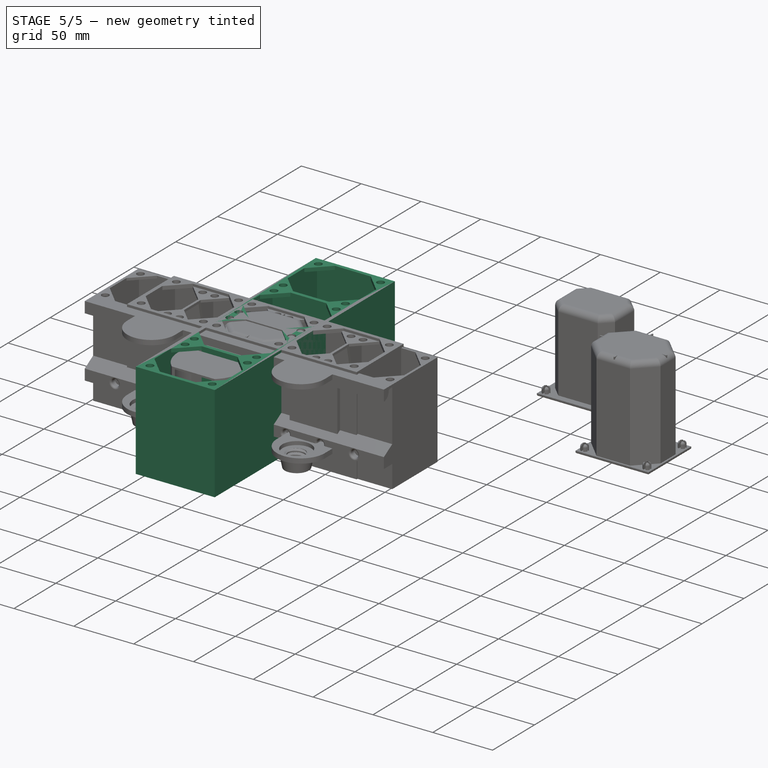
[diagram: stage 5 of 5 — iso view after this stage's code; geometry added in this stage tinted green]
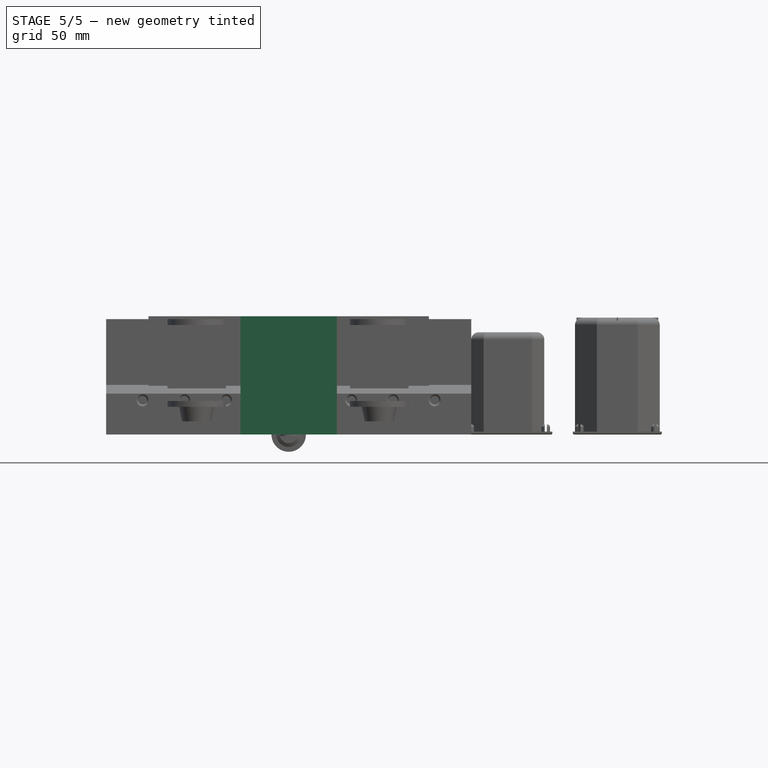
[diagram: stage 5 of 5 — front view after this stage's code; geometry added in this stage tinted green]
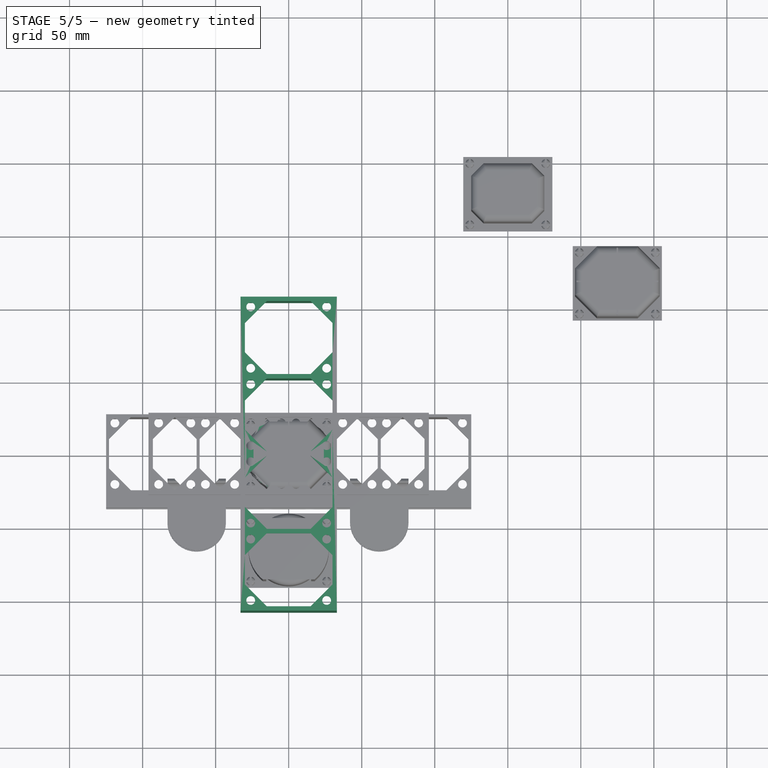
[diagram: stage 5 of 5 — top view after this stage's code; geometry added in this stage tinted green]
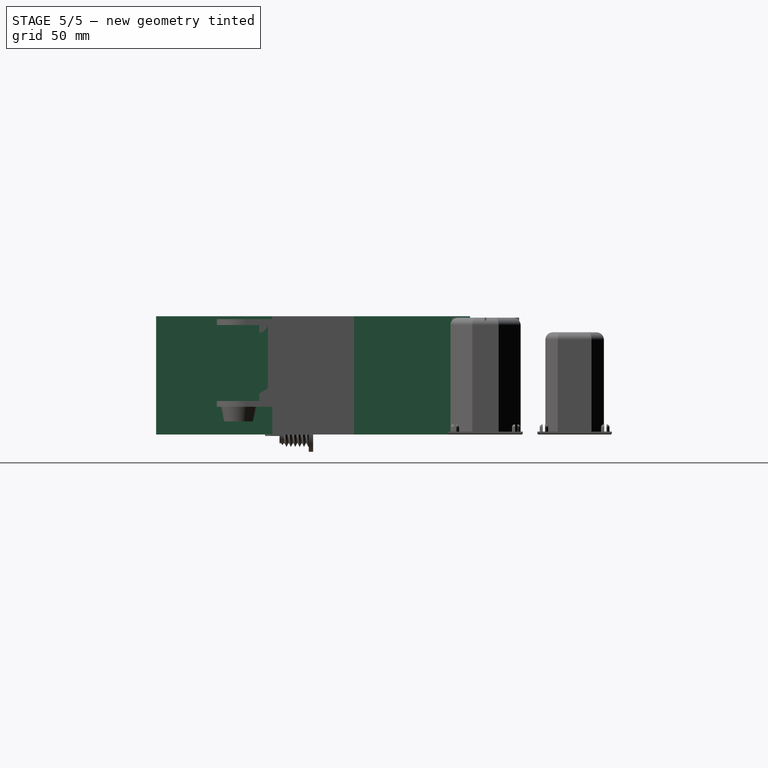
[diagram: stage 5 of 5 — right view after this stage's code; geometry added in this stage tinted green]
FEATURE [Sketcher::SketchObject] StructureSketch
  FullyConstrained = true
  MapMode = 5
  Support = -> [XY_Plane001]
  sketch-geometry (4):
    g0: LineSegment StartX=-33 StartY=-107.5 StartZ=0 EndX=33 EndY=-107.5 EndZ=0
    g1: LineSegment StartX=33 StartY=-107.5 StartZ=0 EndX=33 EndY=107.5 EndZ=0
    g2: LineSegment StartX=33 StartY=107.5 StartZ=0 EndX=-33 EndY=107.5 EndZ=0
    g3: LineSegment StartX=-33 StartY=107.5 StartZ=0 EndX=-33 EndY=-107.5 EndZ=0
  constraints (10):
    c: Coincident(g0,g1)
    c: Coincident(g1,g2)
    c: Coincident(g2,g3)
    c: Coincident(g3,g0)
    c: Horizontal(g2)
    c: Vertical(g3)
    c: DistanceX(g0,g0) = 66
    c: DistanceY(g1,g1) = 215
    c: Symmetric(g0,g0,g-2)
    c: Symmetric(g1,g1,g-1)
FEATURE [PartDesign::Pad] MainStructure
  Direction = (0,0,1)
  Length = 81
  Length2 = 10
  Profile = -> StructureSketch
  ReferenceAxis = -> StructureSketch [N_Axis]
  Type = 0
FEATURE [PartDesign::Plane] DatumPlane
  Length = 89.8244
  MapMode = 2
  ResizeMode = 0
  Support = -> [MainStructure]
  Width = 238.824
FEATURE [Sketcher::SketchObject] ZoneSketch
  AttachmentOffset = pos=(0,79.5,0) rot=(0,0,1;0rad)
  FullyConstrained = false
  MapMode = 5
  Placement = pos=(0,79.5,0) rot=(0,0,1;0rad)
  Support = -> [DatumPlane]
  sketch-geometry (12):
    g0: LineSegment StartX=-15 StartY=25 StartZ=0 EndX=15 EndY=25 EndZ=0
    g1: LineSegment StartX=15 StartY=25 StartZ=0 EndX=30 EndY=10 EndZ=0
    g2: LineSegment StartX=30 StartY=10 StartZ=0 EndX=30 EndY=-10 EndZ=0
    g3: LineSegment StartX=30 StartY=-10 StartZ=0 EndX=15 EndY=-25 EndZ=0
    g4: LineSegment StartX=15 StartY=-25 StartZ=0 EndX=-15 EndY=-25 EndZ=0
    g5: LineSegment StartX=-15 StartY=-25 StartZ=0 EndX=-30 EndY=-10 EndZ=0
    g6: LineSegment StartX=-30 StartY=-10 StartZ=0 EndX=-30 EndY=10 EndZ=0
    g7: LineSegment StartX=-30 StartY=10 StartZ=0 EndX=-15 EndY=25 EndZ=0
    g8: Circle CenterX=-26 CenterY=21 CenterZ=0 NormalX=0 NormalY=0 NormalZ=1 AngleXU=0 Radius=3
    g9: Circle CenterX=26 CenterY=21 CenterZ=0 NormalX=0 NormalY=0 NormalZ=1 AngleXU=0 Radius=3
    g10: Circle CenterX=26 CenterY=-21 CenterZ=0 NormalX=0 NormalY=0 NormalZ=1 AngleXU=0 Radius=3
    g11: Circle CenterX=-26 CenterY=-21 CenterZ=0 NormalX=0 NormalY=0 NormalZ=1 AngleXU=0 Radius=3
  constraints (24):
    c: Coincident(g0,g1)
    c: Coincident(g1,g2)
    c: Coincident(g2,g3)
    c: Coincident(g3,g4)
    c: Coincident(g4,g5)
    c: Coincident(g5,g6)
    c: Coincident(g6,g7)
    c: Coincident(g7,g0)
    c: Horizontal(g4)
    c: Vertical(g6)
    c: DistanceX(g0,g0) = 30
    c: DistanceY(g2,g2) = 20
    c: DistanceX(g6,g2) = 60
    c: DistanceY(g4,g0) = 50
    c: Symmetric(g0,g0,g-2)
    c: Symmetric(g2,g2,g-1)
    c: Symmetric(g0,g4,g-1)
    c: Symmetric(g2,g6,g-2)
    c: Equal(g0,g4)
    c: Equal(g2,g6)
    c: Radius(g8) = 3
    c: Radius(g9) = 3
    c: Radius(g10) = 3
    c: Radius(g11) = 3
FEATURE [PartDesign::Pocket] CenterPocket
  BaseFeature = -> MainStructure
  Direction = (0,0,-1)
  Length = 81
  Length2 = 5
  Profile = -> ZoneSketch
  ReferenceAxis = -> ZoneSketch [N_Axis]
  Reversed = true
  Type = 0
FEATURE [PartDesign::LinearPattern] CenterPocketTransformY
  Direction = -> ZoneSketch [V_Axis]
  Length = 159
  Occurrences = 4
  Reversed = true
FEATURE [Sketcher::SketchObject] ZoneFillSketch
  AttachmentOffset = pos=(0,79.5,0) rot=(0,0,1;0rad)
  FullyConstrained = true
  MapMode = 5
  Placement = pos=(0,79.5,0) rot=(0,0,1;0rad)
  Support = -> [DatumPlane]
  sketch-geometry (4):
    g0: LineSegment StartX=-30 StartY=25 StartZ=0 EndX=30 EndY=25 EndZ=0
    g1: LineSegment StartX=30 StartY=25 StartZ=0 EndX=30 EndY=-25 EndZ=0
    g2: LineSegment StartX=30 StartY=-25 StartZ=0 EndX=-30 EndY=-25 EndZ=0
    g3: LineSegment StartX=-30 StartY=-25 StartZ=0 EndX=-30 EndY=25 EndZ=0
  constraints (10):
    c: Coincident(g0,g1)
    c: Coincident(g1,g2)
    c: Coincident(g2,g3)
    c: Coincident(g3,g0)
    c: DistanceX(g0,g0) = 60
    c: DistanceY(g1,g1) = 50
    c: Symmetric(g0,g0,g-2)
    c: Symmetric(g1,g1,g-1)
    c: Equal(g0,g2)
    c: Equal(g1,g3)
FEATURE [PartDesign::Pocket] CenterFillPocket
  BaseFeature = -> CenterPocket
  Direction = (0,0,-1)
  Length = 78
  Length2 = 5
  Profile = -> ZoneFillSketch
  ReferenceAxis = -> ZoneFillSketch [N_Axis]
  Reversed = true
  Type = 0
FEATURE [PartDesign::LinearPattern] CenterFillTransformY
  Direction = -> ZoneFillSketch [V_Axis]
  Length = 159
  Occurrences = 4
  Reversed = true
FEATURE [PartDesign::MultiTransform] CenterFillTransform
  BaseFeature = -> CenterFillPocket
  Originals = -> [CenterFillPocket]
  Transformations = -> [CenterFillTransformY]
FEATURE [PartDesign::MultiTransform] CenterPocketTransform
  BaseFeature = -> CenterFillTransform
  Originals = -> [CenterPocket]
  Transformations = -> [CenterPocketTransformY]
FEATURE [PartDesign::Body] Body  label="Blank"
  Group = -> [Sketch001,Pad,DatumPlane002,Sketch002,Pad001,MultiTransform,Mirrored,Mirrored001,Fillet,Fillet001,DatumPlane003,Sketch003,Pocket,MultiTransform001,Mirrored002,Mirrored003]
  Origin = -> Origin003
  Placement = pos=(0,-65,0) rot=(0,0,1;0rad)
  Tip = -> MultiTransform001
FEATURE [PartDesign::FeatureBase] Clone
  BaseFeature = -> Body
FEATURE [Sketcher::SketchObject] Sketch037
  FullyConstrained = true
  MapMode = 5
  Placement = pos=(0,0,0) rot=(1,0,0;3.14159rad)
  sketch-geometry (4):
    g0: ArcOfCircle CenterX=-9.5 CenterY=6.75 CenterZ=0 NormalX=0 NormalY=0 NormalZ=1 AngleXU=0 Radius=16 StartAngle=0 EndAngle=3.14159
    g1: ArcOfCircle CenterX=-9.5 CenterY=-6.75 CenterZ=0 NormalX=0 NormalY=0 NormalZ=1 AngleXU=0 Radius=16 StartAngle=3.14159 EndAngle=6.28319
    g2: LineSegment StartX=-25.5 StartY=6.75 StartZ=0 EndX=-25.5 EndY=-6.75 EndZ=0
    g3: LineSegment StartX=6.5 StartY=-6.75 StartZ=0 EndX=6.5 EndY=6.75 EndZ=0
  constraints (9):
    c: Tangent(g0,g2) = -1.5708
    c: Tangent(g2,g1) = -1.5708
    c: Tangent(g1,g3) = -1.5708
    c: Tangent(g3,g0) = -1.5708
    c: Equal(g0,g1)
    c: DistanceY(g1,g0) = 13.5
    c: DistanceX(g0,g0) = 32
    c: Symmetric(g0,g1,g-1)
    c: DistanceX(g-1,g0) = 6.5
FEATURE [PartDesign::Pad] Pad011
  BaseFeature = -> Clone
  Direction = (0,0,-1)
  Length = 65
  Length2 = 10
  Profile = -> Sketch037
  ReferenceAxis = -> Sketch037 [N_Axis]
  Reversed = true
  Type = 0
FEATURE [Sketcher::SketchObject] Sketch038
  FullyConstrained = true
  MapMode = 5
  sketch-geometry (8):
    g0: ArcOfCircle CenterX=-9.5 CenterY=6.75 CenterZ=0 NormalX=0 NormalY=0 NormalZ=1 AngleXU=0 Radius=14.85 StartAngle=0 EndAngle=3.14159
    g1: ArcOfCircle CenterX=-9.5 CenterY=-6.75 CenterZ=0 NormalX=0 NormalY=0 NormalZ=1 AngleXU=0 Radius=14.85 StartAngle=3.14159 EndAngle=6.28319
    g2: LineSegment StartX=-24.35 StartY=6.75 StartZ=0 EndX=-24.35 EndY=-6.75 EndZ=0
    g3: LineSegment StartX=5.35 StartY=-6.75 StartZ=0 EndX=5.35 EndY=6.75 EndZ=0
    g4: Circle CenterX=14 CenterY=16 CenterZ=0 NormalX=0 NormalY=0 NormalZ=1 AngleXU=0 Radius=3.85
    g5: Circle CenterX=14 CenterY=-16 CenterZ=0 NormalX=0 NormalY=0 NormalZ=1 AngleXU=0 Radius=3.85
    g6: Circle CenterX=22 CenterY=6 CenterZ=0 NormalX=0 NormalY=0 NormalZ=1 AngleXU=0 Radius=3.85
    g7: Circle CenterX=22 CenterY=-6 CenterZ=0 NormalX=0 NormalY=0 NormalZ=1 AngleXU=0 Radius=3.85
  constraints (19):
    c: Tangent(g0,g2) = -1.5708
    c: Tangent(g2,g1) = -1.5708
    c: Tangent(g1,g3) = -1.5708
    c: Tangent(g3,g0) = -1.5708
    c: Equal(g0,g1)
    c: DistanceY(g1,g0) = 13.5
    c: DistanceX(g0,g0) = 29.7
    c: Radius(g4) = 3.85
    c: Symmetric(g0,g1,g-1)
    c: Equal(g6,g7)
    c: DistanceY(g-1,g4) = 16
    c: DistanceX(g-1,g4) = 14
    c: DistanceX(g-1,g1) = 5.35
    c: Equal(g4,g6)
    c: Equal(g7,g5)
    c: Symmetric(g4,g5,g-1)
    c: Symmetric(g6,g7,g-1)
    c: DistanceY(g-1,g6) = 6
    c: DistanceX(g-1,g6) = 22
FEATURE [PartDesign::Pocket] Pocket007
  BaseFeature = -> Pad011
  Direction = (0,0,-1)
  Length = 63
  Length2 = 5
  Profile = -> Sketch038
  ReferenceAxis = -> Sketch038 [N_Axis]
  Reversed = true
  Type = 0
FEATURE [PartDesign::Fillet] Fillet014
  Base = -> Pocket007 [Face109]
  BaseFeature = -> Pocket007
  Radius = 14
  SupportTransform = false
  UseAllEdges = false
FEATURE [PartDesign::Fillet] Fillet015
  Base = -> Fillet014 [Edge30,Edge29,Edge31,Edge32]
  BaseFeature = -> Fillet014
  Radius = 1.5
  SupportTransform = false
  UseAllEdges = false
FEATURE [PartDesign::Body] Body007  label="Oblong-30x33x63"
  BaseFeature = -> Body
  Group = -> [Clone,Sketch037,Pad011,Sketch038,Pocket007,Fillet014,Fillet015]
  Origin = -> Origin011
  Placement = pos=(225,0,0) rot=(0,0,1;0rad)
  Tip = -> Fillet015
FEATURE [PartDesign::FeatureBase] Clone001
  BaseFeature = -> Body
FEATURE [Sketcher::SketchObject] Sketch039
  FullyConstrained = true
  MapMode = 5
  Placement = pos=(0,0,0) rot=(1,0,0;3.14159rad)
  sketch-geometry (4):
    g0: ArcOfCircle CenterX=-8 CenterY=7.25 CenterZ=0 NormalX=0 NormalY=0 NormalZ=1 AngleXU=0 Radius=16.5 StartAngle=3e-16 EndAngle=3.14159
    g1: ArcOfCircle CenterX=-8 CenterY=-7.25 CenterZ=0 NormalX=0 NormalY=0 NormalZ=1 AngleXU=0 Radius=16.5 StartAngle=3.14159 EndAngle=6.28319
    g2: LineSegment StartX=-24.5 StartY=7.25 StartZ=0 EndX=-24.5 EndY=-7.25 EndZ=0
    g3: LineSegment StartX=8.5 StartY=-7.25 StartZ=0 EndX=8.5 EndY=7.25 EndZ=0
  constraints (9):
    c: Tangent(g0,g2) = -1.5708
    c: Tangent(g2,g1) = -1.5708
    c: Tangent(g1,g3) = -1.5708
    c: Tangent(g3,g0) = -1.5708
    c: Equal(g0,g1)
    c: DistanceY(g1,g0) = 14.5
    c: DistanceX(g0,g0) = 33
    c: Symmetric(g0,g1,g-1)
    c: DistanceX(g-1,g0) = 8.5
FEATURE [PartDesign::Pad] Pad012
  BaseFeature = -> Clone001
  Direction = (0,0,-1)
  Length = 78
  Length2 = 10
  Profile = -> Sketch039
  ReferenceAxis = -> Sketch039 [N_Axis]
  Reversed = true
  Type = 0
FEATURE [Sketcher::SketchObject] Sketch040
  FullyConstrained = true
  MapMode = 5
  sketch-geometry (8):
    g0: ArcOfCircle CenterX=-8 CenterY=7.25 CenterZ=0 NormalX=0 NormalY=0 NormalZ=1 AngleXU=0 Radius=15.5 StartAngle=-8.97e-14 EndAngle=3.14159
    g1: ArcOfCircle CenterX=-8 CenterY=-7.25 CenterZ=0 NormalX=0 NormalY=0 NormalZ=1 AngleXU=0 Radius=15.5 StartAngle=3.14159 EndAngle=6.28319
    g2: LineSegment StartX=-23.5 StartY=7.25 StartZ=0 EndX=-23.5 EndY=-7.25 EndZ=0
    g3: LineSegment StartX=7.5 StartY=-7.25 StartZ=0 EndX=7.5 EndY=7.25 EndZ=0
    g4: Circle CenterX=14 CenterY=16 CenterZ=0 NormalX=0 NormalY=0 NormalZ=1 AngleXU=0 Radius=3.85
    g5: Circle CenterX=14 CenterY=-16 CenterZ=0 NormalX=0 NormalY=0 NormalZ=1 AngleXU=0 Radius=3.85
    g6: Circle CenterX=22 CenterY=6 CenterZ=0 NormalX=0 NormalY=0 NormalZ=1 AngleXU=0 Radius=3.85
    g7: Circle CenterX=22 CenterY=-6 CenterZ=0 NormalX=0 NormalY=0 NormalZ=1 AngleXU=0 Radius=3.85
  constraints (19):
    c: Tangent(g0,g2) = -1.5708
    c: Tangent(g2,g1) = -1.5708
    c: Tangent(g1,g3) = -1.5708
    c: Tangent(g3,g0) = -1.5708
    c: Equal(g0,g1)
    c: DistanceY(g1,g0) = 14.5
    c: DistanceX(g0,g0) = 31
    c: Radius(g4) = 3.85
    c: Symmetric(g0,g1,g-1)
    c: Equal(g6,g7)
    c: DistanceY(g-1,g4) = 16
    c: DistanceX(g-1,g4) = 14
    c: DistanceX(g-1,g1) = 7.5
    c: Equal(g4,g6)
    c: Equal(g7,g5)
    c: Symmetric(g4,g5,g-1)
    c: Symmetric(g6,g7,g-1)
    c: DistanceY(g-1,g6) = 6
    c: DistanceX(g-1,g6) = 22
FEATURE [PartDesign::Pocket] Pocket008
  BaseFeature = -> Pad012
  Direction = (0,0,-1)
  Length = 77
  Length2 = 5
  Profile = -> Sketch040
  ReferenceAxis = -> Sketch040 [N_Axis]
  Reversed = true
  Type = 0
FEATURE [PartDesign::Fillet] Fillet016
  Base = -> Pocket008 [Face109]
  BaseFeature = -> Pocket008
  Radius = 4
  SupportTransform = false
  UseAllEdges = false
FEATURE [PartDesign::Fillet] Fillet017
  Base = -> Fillet016 [Edge31,Edge32,Edge30,Edge29]
  BaseFeature = -> Fillet016
  Radius = 1.5
  SupportTransform = false
  UseAllEdges = false
FEATURE [PartDesign::Body] Body008  label="Oblong-31x45x77"
  BaseFeature = -> Body
  Group = -> [Clone001,Sketch039,Pad012,Sketch040,Pocket008,Fillet016,Fillet017]
  Origin = -> Origin012
  Placement = pos=(150,0,0) rot=(0,0,1;0rad)
  Tip = -> Fillet017
FEATURE [PartDesign::FeatureBase] Clone002
  BaseFeature = -> MultiTransform001
FEATURE [PartDesign::Plane] DatumPlane004
  Length = 72.1553
  MapMode = 5
  Placement = pos=(0,0,0) rot=(1,0,0;3.14159rad)
  ResizeMode = 0
  Support = -> [Clone002]
  Width = 62.1553
FEATURE [Sketcher::SketchObject] Sketch041
  FullyConstrained = true
  MapMode = 5
  Placement = pos=(0,0,0) rot=(1,0,0;3.14159rad)
  Support = -> [Clone002]
  sketch-geometry (2):
    g0: Circle CenterX=-12.5 CenterY=6.84197 CenterZ=0 NormalX=0 NormalY=0 NormalZ=1 AngleXU=0 Radius=14.25
    g1: Circle CenterX=12.5 CenterY=-6.84197 CenterZ=0 NormalX=0 NormalY=0 NormalZ=1 AngleXU=0 Radius=14.25
  constraints (5):
    c: Diameter(g0) = 28.5
    c: Diameter(g1) = 28.5
    c: Symmetric(g1,g0,g-1)
    c: PointOnObject(g-1,g1)
    c: DistanceX(g0,g-1) = 12.5
FEATURE [PartDesign::Pad] Pad013
  BaseFeature = -> Clone002
  Direction = (0,0,-1)
  Length = 40
  Length2 = 10
  Profile = -> Sketch041
  ReferenceAxis = -> Sketch041 [N_Axis]
  Reversed = true
  Type = 0
FEATURE [Sketcher::SketchObject] Sketch042
  FullyConstrained = false
  MapMode = 5
  Placement = pos=(0,0,0) rot=(1,0,0;3.14159rad)
  Support = -> [DatumPlane004]
  sketch-geometry (4):
    g0: Circle CenterX=-12.5 CenterY=6.85538 CenterZ=0 NormalX=0 NormalY=0 NormalZ=1 AngleXU=0 Radius=13.5
    g1: Circle CenterX=12.5 CenterY=-6.85538 CenterZ=0 NormalX=0 NormalY=0 NormalZ=1 AngleXU=0 Radius=13.5
    g2: Circle CenterX=12.5 CenterY=13.959 CenterZ=0 NormalX=0 NormalY=0 NormalZ=1 AngleXU=0 Radius=3.85
    g3: Circle CenterX=-12.5 CenterY=-13.959 CenterZ=0 NormalX=0 NormalY=0 NormalZ=1 AngleXU=0 Radius=3.85
  constraints (8):
    c: Equal(g0,g1)
    c: Diameter(g0) = 27
    c: DistanceX(g0,g-1) = 12.5
    c: Symmetric(g1,g0,g-1)
    c: Equal(g3,g2)
    c: Symmetric(g3,g2,g-1)
    c: Radius(g2) = 3.85
    c: DistanceX(g-1,g2) = 12.5
FEATURE [PartDesign::Pocket] Pocket009
  BaseFeature = -> Pad013
  Direction = (0,0,1)
  Length = 39
  Length2 = 5
  Profile = -> Sketch042
  ReferenceAxis = -> Sketch042 [N_Axis]
  Type = 0
FEATURE [PartDesign::Fillet] Fillet018
  Base = -> Pocket009 [Face89,Face62,Face106,Face105]
  BaseFeature = -> Pocket009
  Radius = 5
  SupportTransform = false
  UseAllEdges = false
FEATURE [PartDesign::Fillet] Fillet019
  Base = -> Fillet018 [Edge104,Edge140]
  BaseFeature = -> Fillet018
  Radius = 1.5
  SupportTransform = false
  UseAllEdges = false
FEATURE [PartDesign::Body] Body009  label="Round-27x39"
  BaseFeature = -> MultiTransform001
  Group = -> [Clone002,DatumPlane004,Sketch041,Pad013,Sketch042,Pocket009,Fillet018,Fillet019]
  Origin = -> Origin013
  Placement = pos=(74,0,0) rot=(0,0,1;0rad)
  Tip = -> Fillet019
FEATURE [PartDesign::FeatureBase] Clone003
  BaseFeature = -> Body
FEATURE [PartDesign::Plane] DatumPlane005
  Length = 77.7875
  MapMode = 5
  Placement = pos=(0,0,0) rot=(1,0,0;3.14159rad)
  ResizeMode = 0
  Support = -> [Clone003]
  Width = 132.287
FEATURE [Sketcher::SketchObject] Sketch043
  FullyConstrained = true
  MapMode = 5
  Placement = pos=(0,0,0) rot=(1,0,0;3.14159rad)
  Support = -> [DatumPlane005]
  sketch-geometry (1):
    g0: Circle CenterX=0 CenterY=0 CenterZ=0 NormalX=0 NormalY=0 NormalZ=1 AngleXU=0 Radius=20
  constraints (2):
    c: Diameter(g0) = 40
    c: Coincident(g0,g-1)
FEATURE [PartDesign::Pocket] Pocket010
  BaseFeature = -> Clone003
  Direction = (0,0,1)
  Length = 5
  Length2 = 5
  Profile = -> Sketch043
  ReferenceAxis = -> Sketch043 [N_Axis]
  Type = 0
FEATURE [PartDesign::Fillet] Fillet020
  Base = -> Pocket010 [Edge85]
  BaseFeature = -> Pocket010
  Radius = 1.5
  SupportTransform = false
  UseAllEdges = false
FEATURE [PartDesign::Body] Body010  label="Round-40"
  BaseFeature = -> Body
  Group = -> [Clone003,DatumPlane005,Sketch043,Pocket010,Fillet020]
  Origin = -> Origin014
  Placement = pos=(223,-65,0) rot=(0,0,1;0rad)
  Tip = -> Fillet020
FEATURE [PartDesign::FeatureBase] Clone004
  BaseFeature = -> Body
FEATURE [PartDesign::Plane] DatumPlane006
  Length = 77.7875
  MapMode = 5
  Placement = pos=(0,0,0) rot=(1,0,0;3.14159rad)
  ResizeMode = 0
  Support = -> [Clone004]
  Width = 132.287
FEATURE [Sketcher::SketchObject] Sketch044
  FullyConstrained = true
  MapMode = 5
  Placement = pos=(0,0,0) rot=(1,0,0;3.14159rad)
  Support = -> [DatumPlane006]
  sketch-geometry (3):
    g0: Circle CenterX=-8.5 CenterY=0 CenterZ=0 NormalX=0 NormalY=0 NormalZ=1 AngleXU=0 Radius=16.5
    g1: Circle CenterX=16 CenterY=10 CenterZ=0 NormalX=0 NormalY=0 NormalZ=1 AngleXU=0 Radius=3.85
    g2: Circle CenterX=16 CenterY=-10 CenterZ=0 NormalX=0 NormalY=0 NormalZ=1 AngleXU=0 Radius=3.85
  constraints (8):
    c: PointOnObject(g0,g-1)
    c: Diameter(g0) = 33
    c: Diameter(g1) = 7.7
    c: Equal(g2,g1)
    c: Symmetric(g2,g1,g-1)
    c: DistanceX(g0,g-1) = 8.5
    c: DistanceX(g-1,g2) = 16
    c: DistanceY(g2,g-1) = 10
FEATURE [PartDesign::Pocket] Pocket011
  BaseFeature = -> Clone004
  Direction = (0,0,1)
  Length = 5
  Length2 = 5
  Profile = -> Sketch044
  ReferenceAxis = -> Sketch044 [N_Axis]
  Type = 0
FEATURE [PartDesign::Fillet] Fillet021
  Base = -> Pocket011 [Edge88,Edge89,Edge87]
  BaseFeature = -> Pocket011
  Radius = 1.5
  SupportTransform = false
  UseAllEdges = false
FEATURE [PartDesign::LinearPattern] LinearPattern
  Direction = -> Sketch047 [H_Axis]
  Length = 40
  Occurrences = 5
  Reversed = true
FEATURE [PartDesign::LinearPattern] LinearPattern001
  Direction = -> Sketch047 [V_Axis]
  Length = 30
  Occurrences = 4
  Reversed = true
FEATURE [PartDesign::MultiTransform] MultiTransform002
  BaseFeature = -> Pocket013
  Originals = -> [Pocket013]
  Transformations = -> [LinearPattern,LinearPattern001]
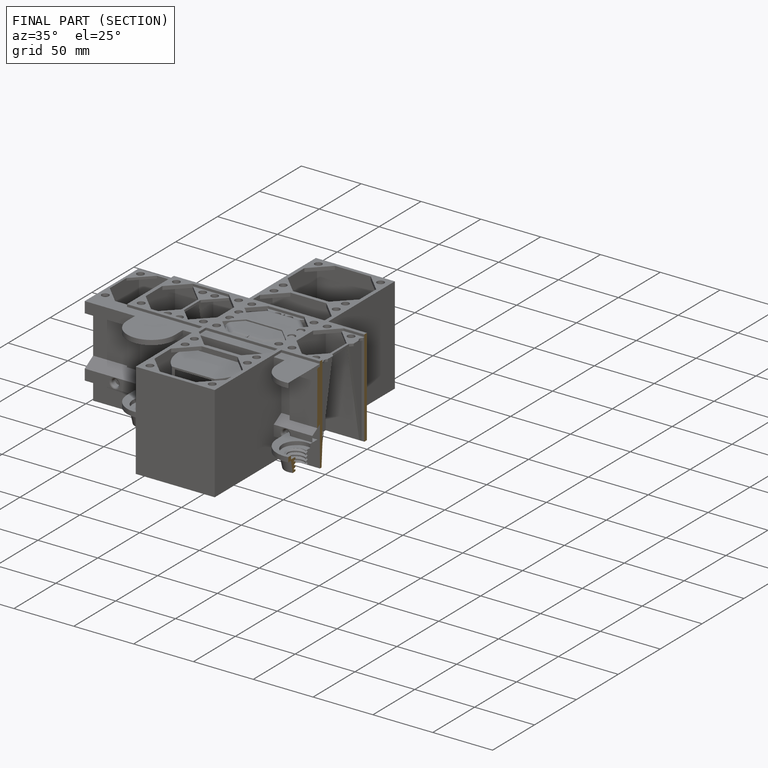
[diagram: finished part — half-section view (interior)]
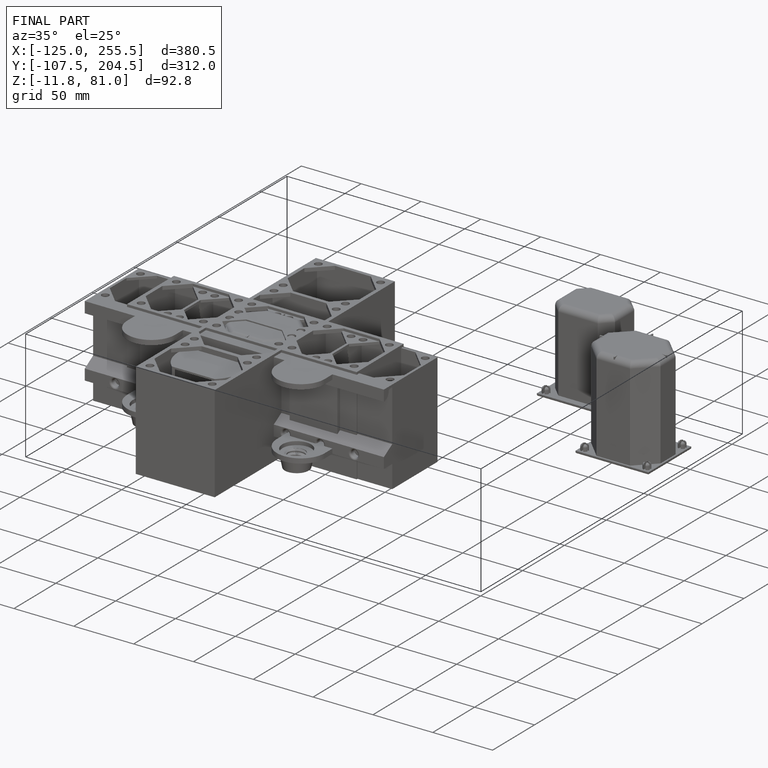
[diagram: finished part — iso view with bounding-box wireframe]
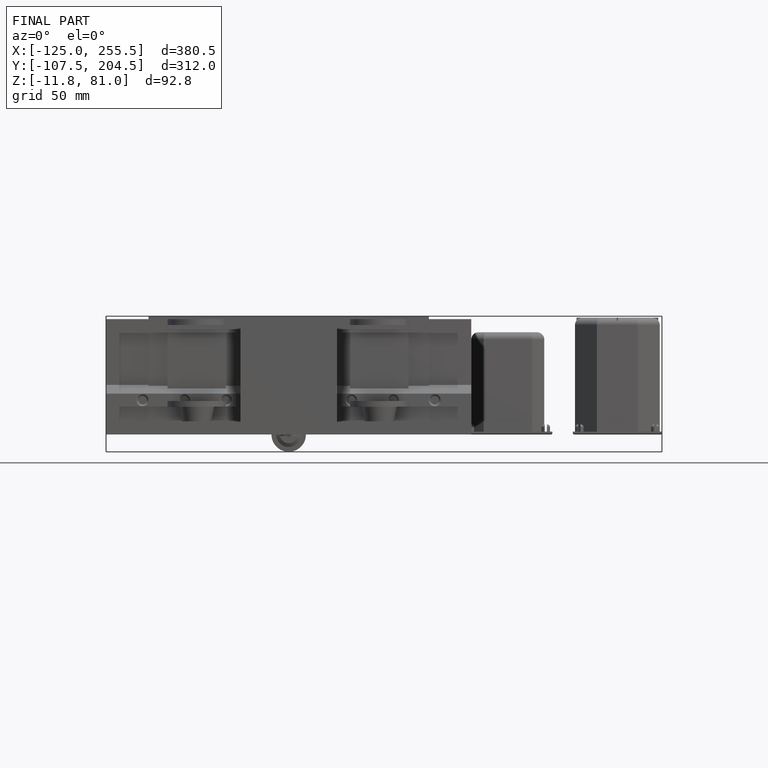
[diagram: finished part — front view with bounding-box wireframe]
